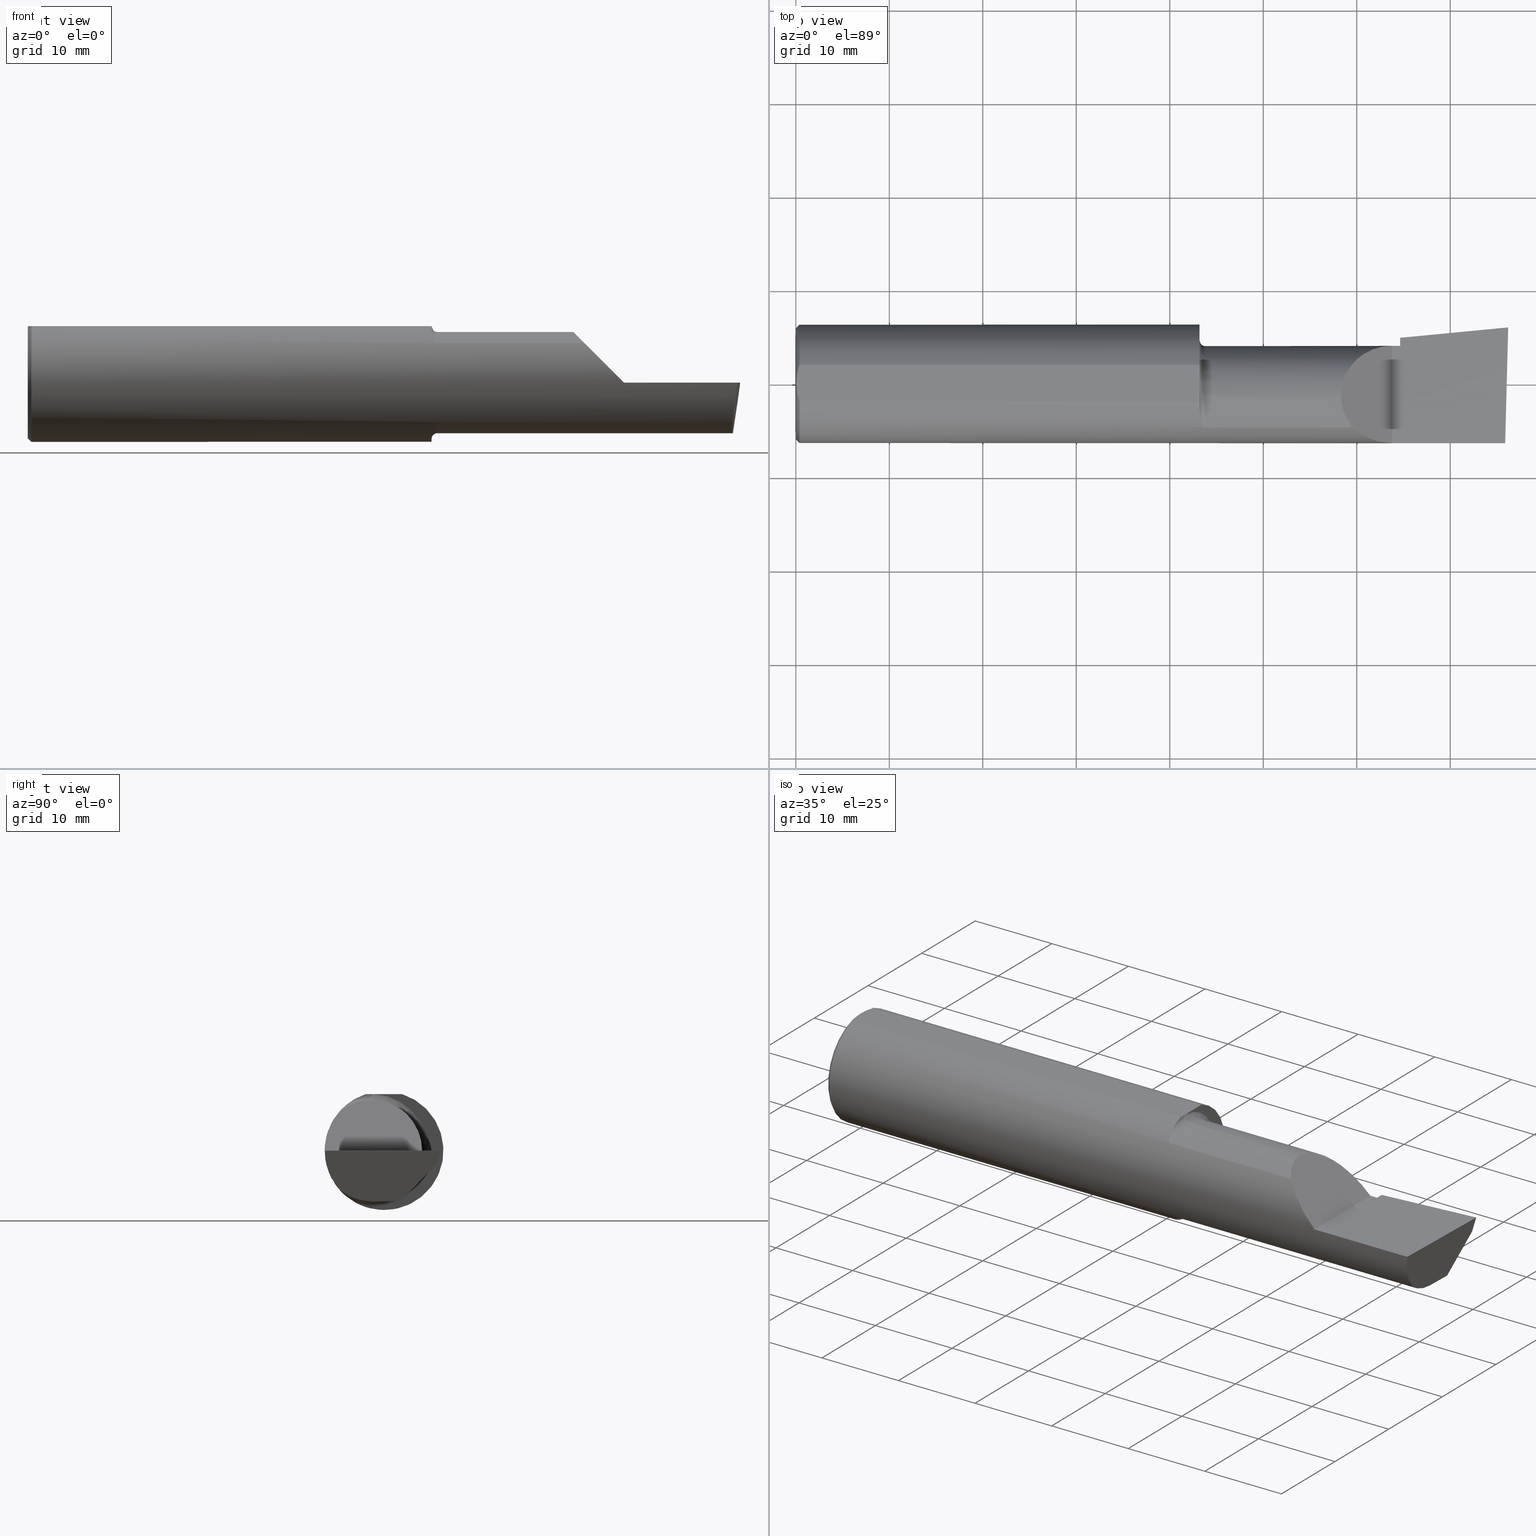
[diagram: canonical four-view strip — front | top / right | iso, engineering-drawing reading convention]
A machine part, canonical four-view strip (front | top / right | iso — engineering-drawing reading convention). The complete STEP part file that produces these views, byte-faithful:
ISO-10303-21;
HEADER;
FILE_DESCRIPTION (( 'STEP AP214' ),
    '1' );
FILE_NAME ('B4901250.STEP',
    '2020-05-06T18:27:08',
    ( '' ),
    ( '' ),
    'SwSTEP 2.0',
    'SolidWorks 2018',
    '' );
FILE_SCHEMA (( 'AUTOMOTIVE_DESIGN' ));
ENDSEC;

DATA;
#1 = DIRECTION ( 'NONE',  ( 0.0000000000000000000, 0.0000000000000000000, 1.000000000000000000 ) ) ;
#2 = FACE_OUTER_BOUND ( 'NONE', #151, .T. ) ;
#3 = VECTOR ( 'NONE', #484, 39.37007874015748143 ) ;
#4 = CARTESIAN_POINT ( 'NONE',  ( 1.725000000000000089, -0.05299999999999996381, -0.2381499999999998896 ) ) ;
#5 = ORIENTED_EDGE ( 'NONE', *, *, #648, .F. ) ;
#6 = ORIENTED_EDGE ( 'NONE', *, *, #312, .T. ) ;
#7 = DIRECTION ( 'NONE',  ( 0.0000000000000000000, 0.0000000000000000000, -1.000000000000000000 ) ) ;
#8 = CARTESIAN_POINT ( 'NONE',  ( 1.700000000000000178, -0.05299999999999998462, 0.0000000000000000000 ) ) ;
#9 = ORIENTED_EDGE ( 'NONE', *, *, #692, .F. ) ;
#10 = CARTESIAN_POINT ( 'NONE',  ( 2.545000000000000373, 0.1328281892403428421, -0.1044069278527785527 ) ) ;
#11 = VECTOR ( 'NONE', #103, 39.37007874015748143 ) ;
#12 = EDGE_CURVE ( 'NONE', #184, #189, #138, .T. ) ;
#13 = CARTESIAN_POINT ( 'NONE',  ( 0.01120982745448973784, -0.06412238594540853320, 0.2378500000000000059 ) ) ;
#14 = AXIS2_PLACEMENT_3D ( 'NONE', #758, #587, #159 ) ;
#15 = DIRECTION ( 'NONE',  ( 0.0000000000000000000, 0.0000000000000000000, -1.000000000000000000 ) ) ;
#16 = CIRCLE ( 'NONE', #126, 0.2498499999999999888 ) ;
#17 =( BOUNDED_CURVE ( )  B_SPLINE_CURVE ( 3, ( #730, #550, #720, #742 ),
 .UNSPECIFIED., .F., .T. ) 
 B_SPLINE_CURVE_WITH_KNOTS ( ( 4, 4 ),
 ( 4.712388980384689674, 5.438654041019562513 ),
 .UNSPECIFIED. ) 
 CURVE ( )  GEOMETRIC_REPRESENTATION_ITEM ( )  RATIONAL_B_SPLINE_CURVE ( ( 1.000000000000000000, 0.9565258159411007544, 0.9565258159411007544, 1.000000000000000000 ) ) 
 REPRESENTATION_ITEM ( '' )  );
#18 = ORIENTED_EDGE ( 'NONE', *, *, #714, .F. ) ;
#19 = CARTESIAN_POINT ( 'NONE',  ( 0.0000000000000000000, 0.0000000000000000000, -0.2348499999999996424 ) ) ;
#20 = ORIENTED_EDGE ( 'NONE', *, *, #517, .F. ) ;
#21 = DIRECTION ( 'NONE',  ( -1.000000000000000000, 0.0000000000000000000, -0.0000000000000000000 ) ) ;
#22 = DIRECTION ( 'NONE',  ( 1.000000000000000000, 0.0000000000000000000, 0.0000000000000000000 ) ) ;
#23 = CARTESIAN_POINT ( 'NONE',  ( 2.966195468375010247, -0.05299999999999998462, -0.2131499999999999229 ) ) ;
#24 =( GEOMETRIC_REPRESENTATION_CONTEXT ( 3 ) GLOBAL_UNCERTAINTY_ASSIGNED_CONTEXT ( ( #301 ) ) GLOBAL_UNIT_ASSIGNED_CONTEXT ( ( #743, #527, #203 ) ) REPRESENTATION_CONTEXT ( 'NONE', 'WORKASPACE' ) );
#25 = CIRCLE ( 'NONE', #398, 0.2131499999999999784 ) ;
#26 = EDGE_CURVE ( 'NONE', #674, #337, #609, .T. ) ;
#27 = ORIENTED_EDGE ( 'NONE', *, *, #88, .T. ) ;
#28 = AXIS2_PLACEMENT_3D ( 'NONE', #250, #667, #314 ) ;
#29 = EDGE_CURVE ( 'NONE', #661, #237, #760, .T. ) ;
#30 = CIRCLE ( 'NONE', #602, 0.2381499999999998618 ) ;
#31 = CARTESIAN_POINT ( 'NONE',  ( 0.0000000000000000000, 0.0000000000000000000, 0.0000000000000000000 ) ) ;
#32 = CARTESIAN_POINT ( 'NONE',  ( 0.01499999999999999771, 0.0000000000000000000, 0.0000000000000000000 ) ) ;
#33 = FACE_OUTER_BOUND ( 'NONE', #82, .T. ) ;
#34 = ORIENTED_EDGE ( 'NONE', *, *, #282, .F. ) ;
#35 = DIRECTION ( 'NONE',  ( 0.0000000000000000000, 0.0000000000000000000, 1.000000000000000000 ) ) ;
#36 = VERTEX_POINT ( 'NONE', #140 ) ;
#37 = DIRECTION ( 'NONE',  ( 0.0000000000000000000, 0.0000000000000000000, 1.000000000000000000 ) ) ;
#38 =( BOUNDED_CURVE ( )  B_SPLINE_CURVE ( 3, ( #508, #79, #452, #683 ),
 .UNSPECIFIED., .F., .T. ) 
 B_SPLINE_CURVE_WITH_KNOTS ( ( 4, 4 ),
 ( 5.604538515477337057, 6.283185307179586232 ),
 .UNSPECIFIED. ) 
 CURVE ( )  GEOMETRIC_REPRESENTATION_ITEM ( )  RATIONAL_B_SPLINE_CURVE ( ( 1.000000000000000000, 0.9619867256453012994, 0.9619867256453012994, 1.000000000000000000 ) ) 
 REPRESENTATION_ITEM ( '' )  );
#39 = CARTESIAN_POINT ( 'NONE',  ( 2.135000000000000231, -0.1868028301886796583, 0.1659208399614084672 ) ) ;
#40 = ADVANCED_FACE ( 'NONE', ( #122 ), #451, .F. ) ;
#41 = LINE ( 'NONE', #325, #685 ) ;
#42 = DIRECTION ( 'NONE',  ( -0.9922060308645452853, 0.02598182930469785171, 0.1218693434051673213 ) ) ;
#43 = ORIENTED_EDGE ( 'NONE', *, *, #397, .T. ) ;
#44 = CARTESIAN_POINT ( 'NONE',  ( 1.725000000000000089, -0.05299999999999998462, 0.0000000000000000000 ) ) ;
#45 = AXIS2_PLACEMENT_3D ( 'NONE', #4, #115, #236 ) ;
#46 = ORIENTED_EDGE ( 'NONE', *, *, #129, .F. ) ;
#47 = CARTESIAN_POINT ( 'NONE',  ( 2.992127980275568255, 0.2189633278254531357, -0.05999999999999997696 ) ) ;
#48 = DIMENSIONAL_EXPONENTS ( 1.000000000000000000, 0.0000000000000000000, 0.0000000000000000000, 0.0000000000000000000, 0.0000000000000000000, 0.0000000000000000000, 0.0000000000000000000 ) ;
#49 = CYLINDRICAL_SURFACE ( 'NONE', #58, 0.2131499999999999229 ) ;
#50 = EDGE_CURVE ( 'NONE', #625, #61, #278, .T. ) ;
#51 = ORIENTED_EDGE ( 'NONE', *, *, #636, .F. ) ;
#52 = ORIENTED_EDGE ( 'NONE', *, *, #599, .F. ) ;
#53 = CARTESIAN_POINT ( 'NONE',  ( 1.720144309637440694, -0.1849788583324332991, 0.1679547276881066253 ) ) ;
#54 = EDGE_LOOP ( 'NONE', ( #619, #560, #160, #297, #430, #370, #651, #326, #414, #389 ) ) ;
#55 = CARTESIAN_POINT ( 'NONE',  ( 1.700332084145229850, -0.1014027185340450193, 0.2286231260779311159 ) ) ;
#56 = CIRCLE ( 'NONE', #62, 0.2348499999999996424 ) ;
#57 = ORIENTED_EDGE ( 'NONE', *, *, #670, .T. ) ;
#58 = AXIS2_PLACEMENT_3D ( 'NONE', #440, #329, #559 ) ;
#59 = CARTESIAN_POINT ( 'NONE',  ( 0.0000000000000000000, 0.0000000000000000000, 0.0000000000000000000 ) ) ;
#60 = EDGE_CURVE ( 'NONE', #201, #189, #520, .T. ) ;
#61 = VERTEX_POINT ( 'NONE', #331 ) ;
#62 = AXIS2_PLACEMENT_3D ( 'NONE', #561, #259, #65 ) ;
#63 = LINE ( 'NONE', #110, #693 ) ;
#64 = EDGE_CURVE ( 'NONE', #446, #642, #307, .T. ) ;
#65 = DIRECTION ( 'NONE',  ( 0.0000000000000000000, 0.0000000000000000000, 1.000000000000000000 ) ) ;
#66 = ORIENTED_EDGE ( 'NONE', *, *, #172, .T. ) ;
#67 = ORIENTED_EDGE ( 'NONE', *, *, #537, .F. ) ;
#68 = CARTESIAN_POINT ( 'NONE',  ( 2.545000000000000373, 0.1328281892403428421, -0.1044069278527785527 ) ) ;
#69 = ORIENTED_EDGE ( 'NONE', *, *, #190, .T. ) ;
#70 = DIRECTION ( 'NONE',  ( 0.0000000000000000000, 0.0000000000000000000, 1.000000000000000000 ) ) ;
#71 = CIRCLE ( 'NONE', #449, 0.2498499999999999888 ) ;
#72 = EDGE_LOOP ( 'NONE', ( #380, #543, #426, #234 ) ) ;
#73 = DIRECTION ( 'NONE',  ( 1.000000000000000000, 0.0000000000000000000, 0.0000000000000000000 ) ) ;
#74 = DIRECTION ( 'NONE',  ( 0.0000000000000000000, 0.0000000000000000000, 1.000000000000000000 ) ) ;
#75 = FACE_OUTER_BOUND ( 'NONE', #735, .T. ) ;
#76 = ORIENTED_EDGE ( 'NONE', *, *, #416, .F. ) ;
#77 = CARTESIAN_POINT ( 'NONE',  ( 2.968492717492763777, -0.1868028301886796583, -0.1659208399614084672 ) ) ;
#78 = FILL_AREA_STYLE ('',( #574 ) ) ;
#79 = CARTESIAN_POINT ( 'NONE',  ( 2.313215146136122780, -0.1485302233682073147, 0.1967848538638751199 ) ) ;
#80 = ORIENTED_EDGE ( 'NONE', *, *, #64, .F. ) ;
#81 = DIRECTION ( 'NONE',  ( 0.09165774897393343112, -0.9519021185660614393, 0.2923717047227302746 ) ) ;
#82 = EDGE_LOOP ( 'NONE', ( #412, #404, #403, #289 ) ) ;
#83 = AXIS2_PLACEMENT_3D ( 'NONE', #427, #494, #498 ) ;
#84 = PLANE ( 'NONE',  #652 ) ;
#85 = DIRECTION ( 'NONE',  ( 0.0000000000000000000, 1.000000000000000000, -1.138839417068644240E-16 ) ) ;
#86 = DIRECTION ( 'NONE',  ( -1.000000000000000000, -0.0000000000000000000, -0.0000000000000000000 ) ) ;
#87 = PRESENTATION_STYLE_ASSIGNMENT (( #439 ) ) ;
#88 = EDGE_CURVE ( 'NONE', #175, #570, #729, .T. ) ;
#89 = CARTESIAN_POINT ( 'NONE',  ( 0.0000000000000000000, 2.967931517733664261E-17, 0.2348499999999996424 ) ) ;
#90 = ORIENTED_EDGE ( 'NONE', *, *, #275, .T. ) ;
#91 = ORIENTED_EDGE ( 'NONE', *, *, #748, .T. ) ;
#92 = AXIS2_PLACEMENT_3D ( 'NONE', #31, #399, #749 ) ;
#93 = DIRECTION ( 'NONE',  ( -1.000000000000000000, -0.0000000000000000000, -0.0000000000000000000 ) ) ;
#94 = CIRCLE ( 'NONE', #290, 0.2131499999999998396 ) ;
#95 = CARTESIAN_POINT ( 'NONE',  ( 2.344079160038591070, -0.1868028301886809905, 0.1659208399614071905 ) ) ;
#96 = EDGE_LOOP ( 'NONE', ( #417, #471, #747, #595 ) ) ;
#97 = DIRECTION ( 'NONE',  ( 1.000000000000000000, 0.0000000000000000000, 0.0000000000000000000 ) ) ;
#98 = MANIFOLD_SOLID_BREP ( '5267FA8E-0C5C-45e6-87A0-509FF28F47E1-GAAFaceID11', #529 ) ;
#99 = CARTESIAN_POINT ( 'NONE',  ( 1.700000000000000178, -0.05299999999999998462, 0.0000000000000000000 ) ) ;
#100 = VECTOR ( 'NONE', #150, 39.37007874015748854 ) ;
#101 = ADVANCED_FACE ( 'NONE', ( #33 ), #364, .F. ) ;
#102 = ORIENTED_EDGE ( 'NONE', *, *, #613, .T. ) ;
#103 = DIRECTION ( 'NONE',  ( 1.000000000000000000, 0.0000000000000000000, 0.0000000000000000000 ) ) ;
#104 = DIRECTION ( 'NONE',  ( -1.000000000000000000, -0.0000000000000000000, -0.0000000000000000000 ) ) ;
#105 = STYLED_ITEM ( 'NONE', ( #300 ), #586 ) ;
#106 = ADVANCED_FACE ( 'NONE', ( #657 ), #641, .T. ) ;
#107 = EDGE_LOOP ( 'NONE', ( #27, #488, #34, #705 ) ) ;
#108 = EDGE_CURVE ( 'NONE', #189, #754, #16, .T. ) ;
#109 = CARTESIAN_POINT ( 'NONE',  ( 2.987221270274242446, -0.2498499999999999888, -6.495017623931165518E-17 ) ) ;
#110 = CARTESIAN_POINT ( 'NONE',  ( 2.987226101480009444, -0.2496655036952227513, -6.495142247650543265E-17 ) ) ;
#111 = EDGE_CURVE ( 'NONE', #237, #549, #17, .T. ) ;
#112 = ORIENTED_EDGE ( 'NONE', *, *, #108, .F. ) ;
#113 = FACE_OUTER_BOUND ( 'NONE', #248, .T. ) ;
#114 = LENGTH_MEASURE_WITH_UNIT ( LENGTH_MEASURE( 0.02539999999999999897 ), #332 );
#115 = DIRECTION ( 'NONE',  ( -0.0000000000000000000, 1.000000000000000000, 1.224646799147353207E-16 ) ) ;
#116 = VECTOR ( 'NONE', #200, 39.37007874015748143 ) ;
#117 = CARTESIAN_POINT ( 'NONE',  ( 1.717018584423772198, -0.1817363555988616708, 0.1714722504633802991 ) ) ;
#118 = ORIENTED_EDGE ( 'NONE', *, *, #108, .T. ) ;
#119 = DIRECTION ( 'NONE',  ( -1.000000000000000000, -0.0000000000000000000, -0.0000000000000000000 ) ) ;
#120 =( BOUNDED_CURVE ( )  B_SPLINE_CURVE ( 3, ( #509, #202, #453, #23 ),
 .UNSPECIFIED., .F., .F. ) 
 B_SPLINE_CURVE_WITH_KNOTS ( ( 4, 4 ),
 ( 5.814587959757513858, 6.493234751459754150 ),
 .UNSPECIFIED. ) 
 CURVE ( )  GEOMETRIC_REPRESENTATION_ITEM ( )  RATIONAL_B_SPLINE_CURVE ( ( 1.000000000000000000, 0.9619867256453021875, 0.9619867256453021875, 1.000000000000000000 ) ) 
 REPRESENTATION_ITEM ( '' )  );
#121 = DIRECTION ( 'NONE',  ( 1.000000000000000000, 0.0000000000000000000, 0.0000000000000000000 ) ) ;
#122 = FACE_OUTER_BOUND ( 'NONE', #96, .T. ) ;
#123 = EDGE_LOOP ( 'NONE', ( #118, #90, #528, #485 ) ) ;
#124 = DIRECTION ( 'NONE',  ( -0.09584575252021049208, 0.9953961983671800740, 0.0000000000000000000 ) ) ;
#125 = CARTESIAN_POINT ( 'NONE',  ( 2.541916792879878706, 0.05627666367902771360, -0.1830073912696824345 ) ) ;
#126 = AXIS2_PLACEMENT_3D ( 'NONE', #567, #249, #677 ) ;
#127 = ORIENTED_EDGE ( 'NONE', *, *, #359, .T. ) ;
#128 = DIRECTION ( 'NONE',  ( 0.0000000000000000000, 0.0000000000000000000, 1.000000000000000000 ) ) ;
#129 = EDGE_CURVE ( 'NONE', #184, #36, #174, .T. ) ;
#130 = CARTESIAN_POINT ( 'NONE',  ( 2.528944985009564217, 0.1743638780700109969, -0.05999999999999998390 ) ) ;
#131 = LINE ( 'NONE', #406, #751 ) ;
#132 = AXIS2_PLACEMENT_3D ( 'NONE', #753, #156, #213 ) ;
#133 = CARTESIAN_POINT ( 'NONE',  ( 2.540349815208490014, 0.05592018782259779164, -0.1832193089843150713 ) ) ;
#134 = CIRCLE ( 'NONE', #462, 0.2498499999999999888 ) ;
#135 = ORIENTED_EDGE ( 'NONE', *, *, #764, .T. ) ;
#136 = CARTESIAN_POINT ( 'NONE',  ( 1.725000000000000089, -0.05299999999999998462, 0.0000000000000000000 ) ) ;
#137 = CARTESIAN_POINT ( 'NONE',  ( 1.725000000000000089, -0.1868028301886795473, -0.1659208399614084672 ) ) ;
#138 = CIRCLE ( 'NONE', #510, 0.2381499999999998618 ) ;
#139 = CARTESIAN_POINT ( 'NONE',  ( 1.725000000000000089, -0.05299999999999998462, 0.0000000000000000000 ) ) ;
#140 = CARTESIAN_POINT ( 'NONE',  ( 1.725000000000000089, -0.05299999999999996381, -0.2131499999999998396 ) ) ;
#141 =( NAMED_UNIT ( * ) PLANE_ANGLE_UNIT ( ) SI_UNIT ( $, .RADIAN. ) );
#142 = CARTESIAN_POINT ( 'NONE',  ( 1.725000000000000089, -0.05299999999999998462, 0.0000000000000000000 ) ) ;
#143 = DIRECTION ( 'NONE',  ( 0.06658005426110608083, -0.6914603011188221737, -0.7193398003386548556 ) ) ;
#144 = CARTESIAN_POINT ( 'NONE',  ( 1.705537042546466875, -0.1495003888704987127, -0.2004994225712674327 ) ) ;
#145 = PRESENTATION_LAYER_ASSIGNMENT (  '', '', ( #105 ) ) ;
#146 = SURFACE_SIDE_STYLE ('',( #467 ) ) ;
#147 = CARTESIAN_POINT ( 'NONE',  ( 2.528944985009564217, 0.1743638780700109969, -0.05999999999999998390 ) ) ;
#148 = EDGE_CURVE ( 'NONE', #344, #184, #322, .T. ) ;
#149 = CARTESIAN_POINT ( 'NONE',  ( 0.004092330037930667214, 0.02606142970188504368, 0.2378500000000000059 ) ) ;
#150 = DIRECTION ( 'NONE',  ( 0.9953961983671800740, 0.09584575252021031166, -0.0000000000000000000 ) ) ;
#151 = EDGE_LOOP ( 'NONE', ( #18, #768, #383, #228, #43 ) ) ;
#152 = CARTESIAN_POINT ( 'NONE',  ( 2.385139620819824113, 0.1601499999999999313, 0.1248603791801747576 ) ) ;
#153 = EDGE_CURVE ( 'NONE', #570, #717, #500, .T. ) ;
#154 = LINE ( 'NONE', #525, #638 ) ;
#155 = EDGE_LOOP ( 'NONE', ( #542, #91, #759, #731, #177, #524 ) ) ;
#156 = DIRECTION ( 'NONE',  ( -2.618446795914836237E-16, 0.0000000000000000000, -1.000000000000000000 ) ) ;
#157 = VECTOR ( 'NONE', #628, 39.37007874015748143 ) ;
#158 =( BOUNDED_CURVE ( )  B_SPLINE_CURVE ( 3, ( #712, #766, #598, #233 ),
 .UNSPECIFIED., .F., .F. ) 
 B_SPLINE_CURVE_WITH_KNOTS ( ( 4, 4 ),
 ( 0.4968328636548186572, 1.034445644973940093 ),
 .UNSPECIFIED. ) 
 CURVE ( )  GEOMETRIC_REPRESENTATION_ITEM ( )  RATIONAL_B_SPLINE_CURVE ( ( 1.000000000000000000, 0.9760590552538845888, 0.9760590552538845888, 1.000000000000000000 ) ) 
 REPRESENTATION_ITEM ( '' )  );
#159 = DIRECTION ( 'NONE',  ( -0.0000000000000000000, 0.0000000000000000000, 1.000000000000000000 ) ) ;
#160 = ORIENTED_EDGE ( 'NONE', *, *, #670, .F. ) ;
#161 =( NAMED_UNIT ( * ) SI_UNIT ( $, .STERADIAN. ) SOLID_ANGLE_UNIT ( ) );
#162 = DIRECTION ( 'NONE',  ( -1.000000000000000000, 5.691349986800549142E-18, -0.0000000000000000000 ) ) ;
#163 = ADVANCED_FACE ( 'NONE', ( #343 ), #183, .T. ) ;
#164 = ORIENTED_EDGE ( 'NONE', *, *, #654, .T. ) ;
#165 = ADVANCED_FACE ( 'NONE', ( #624 ), #756, .T. ) ;
#166 = CARTESIAN_POINT ( 'NONE',  ( 2.545000000000000373, -0.05299999999999998462, -0.2131499999999999229 ) ) ;
#167 = LINE ( 'NONE', #600, #217 ) ;
#168 = DIRECTION ( 'NONE',  ( 0.0000000000000000000, 0.2936076258024059582, 0.9559260233253795702 ) ) ;
#169 = ORIENTED_EDGE ( 'NONE', *, *, #148, .F. ) ;
#170 = AXIS2_PLACEMENT_3D ( 'NONE', #504, #507, #669 ) ;
#171 = CIRCLE ( 'NONE', #672, 0.02499999999999993894 ) ;
#172 = EDGE_CURVE ( 'NONE', #61, #247, #134, .T. ) ;
#173 = DIRECTION ( 'NONE',  ( 0.0000000000000000000, 0.0000000000000000000, 1.000000000000000000 ) ) ;
#174 = CIRCLE ( 'NONE', #45, 0.02499999999999993894 ) ;
#175 = VERTEX_POINT ( 'NONE', #663 ) ;
#176 = CARTESIAN_POINT ( 'NONE',  ( 1.705553274544309827, -0.1495649063853951022, 0.2004446339470382088 ) ) ;
#177 = ORIENTED_EDGE ( 'NONE', *, *, #185, .F. ) ;
#178 = CARTESIAN_POINT ( 'NONE',  ( 0.003000000000000063380, 0.01299872814765626154, 0.2378499999999999226 ) ) ;
#179 = VERTEX_POINT ( 'NONE', #428 ) ;
#180 = CARTESIAN_POINT ( 'NONE',  ( 1.700000000000000178, -0.05299999999999996381, -0.2381499999999998896 ) ) ;
#181 = LINE ( 'NONE', #166, #355 ) ;
#182 = MECHANICAL_DESIGN_GEOMETRIC_PRESENTATION_REPRESENTATION (  '', ( #105 ), #226 ) ;
#183 = PLANE ( 'NONE',  #419 ) ;
#184 = VERTEX_POINT ( 'NONE', #180 ) ;
#185 = EDGE_CURVE ( 'NONE', #294, #674, #545, .T. ) ;
#186 = CARTESIAN_POINT ( 'NONE',  ( 2.536975816846327447, 0.1338694103809225100, -0.1025372660271277742 ) ) ;
#187 = CARTESIAN_POINT ( 'NONE',  ( 0.003000000000000035624, 4.000211044293764417E-17, 0.2378500000000000059 ) ) ;
#188 = FACE_OUTER_BOUND ( 'NONE', #313, .T. ) ;
#189 = VERTEX_POINT ( 'NONE', #489 ) ;
#190 = EDGE_CURVE ( 'NONE', #563, #512, #340, .T. ) ;
#191 = DIRECTION ( 'NONE',  ( 1.000000000000000000, 0.0000000000000000000, 0.0000000000000000000 ) ) ;
#192 = CARTESIAN_POINT ( 'NONE',  ( 0.008199648822849016708, 0.05156445313451110679, 0.2378500000000000059 ) ) ;
#193 = ORIENTED_EDGE ( 'NONE', *, *, #212, .T. ) ;
#194 = ORIENTED_EDGE ( 'NONE', *, *, #556, .F. ) ;
#195 = CARTESIAN_POINT ( 'NONE',  ( 0.008160184410935168720, -0.05138200716576601240, 0.2378500000000000614 ) ) ;
#196 = CARTESIAN_POINT ( 'NONE',  ( 0.01120763235350242214, 0.06411521680875356677, 0.2378500000000000336 ) ) ;
#197 =( LENGTH_UNIT ( ) NAMED_UNIT ( * ) SI_UNIT ( $, .METRE. ) );
#198 = CARTESIAN_POINT ( 'NONE',  ( 2.545000000000000373, 0.2148312740513257935, -0.01988118725737613932 ) ) ;
#199 = SHAPE_DEFINITION_REPRESENTATION ( #219, #586 ) ;
#200 = DIRECTION ( 'NONE',  ( -1.000000000000000000, -0.0000000000000000000, -0.0000000000000000000 ) ) ;
#201 = VERTEX_POINT ( 'NONE', #137 ) ;
#202 = CARTESIAN_POINT ( 'NONE',  ( 2.965703997523711166, -0.1485302233682061768, -0.1967848538638755362 ) ) ;
#203 =( NAMED_UNIT ( * ) SI_UNIT ( $, .STERADIAN. ) SOLID_ANGLE_UNIT ( ) );
#204 = DIRECTION ( 'NONE',  ( 0.0000000000000000000, 0.0000000000000000000, 1.000000000000000000 ) ) ;
#205 = CARTESIAN_POINT ( 'NONE',  ( 1.700000000000000178, -0.06494989539702883397, 0.2378500000000000059 ) ) ;
#206 = CARTESIAN_POINT ( 'NONE',  ( 0.01499999999999999771, 0.07650098038587500870, 0.2378499999999999226 ) ) ;
#207 = B_SPLINE_CURVE_WITH_KNOTS ( 'NONE', 3,
 ( #210, #746, #633, #205 ),
 .UNSPECIFIED., .F., .F.,
 ( 4, 4 ),
 ( 0.4999999999997247202, 1.000000000000000000 ),
 .UNSPECIFIED. ) ;
#208 = ORIENTED_EDGE ( 'NONE', *, *, #648, .T. ) ;
#209 = CARTESIAN_POINT ( 'NONE',  ( 1.700000000000000178, 0.1851499999999998702, 0.0000000000000000000 ) ) ;
#210 = CARTESIAN_POINT ( 'NONE',  ( 1.700000900032402562, -0.05299999999999998462, 0.2378500000000221548 ) ) ;
#211 = LINE ( 'NONE', #257, #521 ) ;
#212 = EDGE_CURVE ( 'NONE', #674, #175, #604, .T. ) ;
#213 = DIRECTION ( 'NONE',  ( -1.000000000000000000, 0.0000000000000000000, 2.618446795914836237E-16 ) ) ;
#214 = CARTESIAN_POINT ( 'NONE',  ( 1.700000000000000178, -0.08036415094339686982, 0.2365726648265747967 ) ) ;
#215 = ORIENTED_EDGE ( 'NONE', *, *, #316, .F. ) ;
#216 = ORIENTED_EDGE ( 'NONE', *, *, #153, .F. ) ;
#217 = VECTOR ( 'NONE', #656, 39.37007874015748143 ) ;
#218 = DIRECTION ( 'NONE',  ( 0.0000000000000000000, 0.0000000000000000000, -1.000000000000000000 ) ) ;
#219 = PRODUCT_DEFINITION_SHAPE ( 'NONE', 'NONE',  #393 ) ;
#220 = ORIENTED_EDGE ( 'NONE', *, *, #309, .F. ) ;
#221 = EDGE_LOOP ( 'NONE', ( #699, #67, #739, #715, #515 ) ) ;
#222 = ADVANCED_FACE ( 'NONE', ( #469 ), #303, .F. ) ;
#223 = DIRECTION ( 'NONE',  ( 0.0000000000000000000, -1.000000000000000000, 1.707404996040164512E-16 ) ) ;
#224 = ADVANCED_FACE ( 'NONE', ( #606 ), #288, .T. ) ;
#225 = ORIENTED_EDGE ( 'NONE', *, *, #401, .F. ) ;
#226 =( GEOMETRIC_REPRESENTATION_CONTEXT ( 3 ) GLOBAL_UNCERTAINTY_ASSIGNED_CONTEXT ( ( #269 ) ) GLOBAL_UNIT_ASSIGNED_CONTEXT ( ( #450, #141, #161 ) ) REPRESENTATION_CONTEXT ( 'NONE', 'WORKASPACE' ) );
#227 = EDGE_CURVE ( 'NONE', #36, #201, #445, .T. ) ;
#228 = ORIENTED_EDGE ( 'NONE', *, *, #688, .T. ) ;
#229 = LINE ( 'NONE', #438, #372 ) ;
#230 = DIRECTION ( 'NONE',  ( -0.0000000000000000000, 0.0000000000000000000, 1.000000000000000000 ) ) ;
#231 = EDGE_CURVE ( 'NONE', #607, #36, #304, .T. ) ;
#232 = DIMENSIONAL_EXPONENTS ( 1.000000000000000000, 0.0000000000000000000, 0.0000000000000000000, 0.0000000000000000000, 0.0000000000000000000, 0.0000000000000000000, 0.0000000000000000000 ) ;
#233 = CARTESIAN_POINT ( 'NONE',  ( 2.540349815208490014, 0.05592018782259779164, -0.1832193089843150713 ) ) ;
#234 = ORIENTED_EDGE ( 'NONE', *, *, #482, .T. ) ;
#235 = ORIENTED_EDGE ( 'NONE', *, *, #354, .T. ) ;
#236 = DIRECTION ( 'NONE',  ( 0.0000000000000000000, 0.0000000000000000000, 1.000000000000000000 ) ) ;
#237 = VERTEX_POINT ( 'NONE', #456 ) ;
#238 = CARTESIAN_POINT ( 'NONE',  ( 0.01499999999999999771, 0.0000000000000000000, -0.2498499999999999888 ) ) ;
#239 = EDGE_LOOP ( 'NONE', ( #305, #283, #273 ) ) ;
#240 = CARTESIAN_POINT ( 'NONE',  ( 1.722232603162240139, -0.1862758070845875191, -0.1665151405181425348 ) ) ;
#241 = AXIS2_PLACEMENT_3D ( 'NONE', #276, #81, #457 ) ;
#242 = CARTESIAN_POINT ( 'NONE',  ( 1.699999999999999734, -0.09104204635388213340, 0.2329453649474654275 ) ) ;
#243 = FACE_OUTER_BOUND ( 'NONE', #716, .T. ) ;
#244 = CARTESIAN_POINT ( 'NONE',  ( 2.966218632342874972, -0.05211540375603048586, -0.2131499999999999229 ) ) ;
#245 = ORIENTED_EDGE ( 'NONE', *, *, #492, .F. ) ;
#246 = DIRECTION ( 'NONE',  ( -1.000000000000000000, -0.0000000000000000000, -0.0000000000000000000 ) ) ;
#247 = VERTEX_POINT ( 'NONE', #395 ) ;
#248 = EDGE_LOOP ( 'NONE', ( #254, #382 ) ) ;
#249 = DIRECTION ( 'NONE',  ( 1.000000000000000000, 0.0000000000000000000, 0.0000000000000000000 ) ) ;
#250 = CARTESIAN_POINT ( 'NONE',  ( 1.725000000000000089, -0.05299999999999998462, 0.0000000000000000000 ) ) ;
#251 = CARTESIAN_POINT ( 'NONE',  ( -0.02370835988220531057, -0.05299999999999998462, 7.234457468298397131E-16 ) ) ;
#252 = SURFACE_STYLE_FILL_AREA ( #431 ) ;
#253 = DIRECTION ( 'NONE',  ( 0.0000000000000000000, -0.6963153109074925462, -0.7177360153954948085 ) ) ;
#254 = ORIENTED_EDGE ( 'NONE', *, *, #368, .T. ) ;
#255 = CARTESIAN_POINT ( 'NONE',  ( 1.725000000000000089, -0.1868028301886795473, -0.1659208399614084672 ) ) ;
#256 = EDGE_CURVE ( 'NONE', #549, #415, #38, .T. ) ;
#257 = CARTESIAN_POINT ( 'NONE',  ( 2.988156289907357710, 0.07000163221414998360, -0.2131499999999999506 ) ) ;
#258 = ORIENTED_EDGE ( 'NONE', *, *, #172, .F. ) ;
#259 = DIRECTION ( 'NONE',  ( -1.000000000000000000, -0.0000000000000000000, -0.0000000000000000000 ) ) ;
#260 = CARTESIAN_POINT ( 'NONE',  ( 1.720138573936400572, -0.1849738682364329700, -0.1679602226613252647 ) ) ;
#261 = FACE_OUTER_BOUND ( 'NONE', #107, .T. ) ;
#262 = CARTESIAN_POINT ( 'NONE',  ( 1.700000900032402562, -0.05299999999999998462, 0.2378500000000221548 ) ) ;
#263 = CARTESIAN_POINT ( 'NONE',  ( 0.003000000000000061211, -0.01298133447204027208, 0.2378500000000000614 ) ) ;
#264 = CARTESIAN_POINT ( 'NONE',  ( 0.01499999999999999771, 0.0000000000000000000, 0.0000000000000000000 ) ) ;
#265 = FACE_OUTER_BOUND ( 'NONE', #701, .T. ) ;
#266 = CARTESIAN_POINT ( 'NONE',  ( 1.719285582744839669, -0.1841881072713809631, -0.1688230283719350799 ) ) ;
#267 = ORIENTED_EDGE ( 'NONE', *, *, #50, .T. ) ;
#268 = CARTESIAN_POINT ( 'NONE',  ( 2.545000000000000373, -0.2500000000000000555, 5.084312937251844195E-17 ) ) ;
#269 = UNCERTAINTY_MEASURE_WITH_UNIT (LENGTH_MEASURE( 1.000000000000000082E-05 ), #450, 'distance_accuracy_value', 'NONE');
#270 = CARTESIAN_POINT ( 'NONE',  ( 1.717016733372314974, -0.1817333077058770063, -0.1714754572696064183 ) ) ;
#271 = APPLICATION_CONTEXT ( 'automotive_design' ) ;
#272 = CARTESIAN_POINT ( 'NONE',  ( 1.715875558094660080, -0.1799506819598040153, -0.1733486322212179631 ) ) ;
#273 = ORIENTED_EDGE ( 'NONE', *, *, #434, .F. ) ;
#274 = CARTESIAN_POINT ( 'NONE',  ( 0.0000000000000000000, -0.05299999999999996381, -0.2131499999999999229 ) ) ;
#275 = EDGE_CURVE ( 'NONE', #754, #344, #737, .T. ) ;
#276 = CARTESIAN_POINT ( 'NONE',  ( 2.527186805775588851, 0.1926232675528999905, -6.829619984160658046E-17 ) ) ;
#277 = CARTESIAN_POINT ( 'NONE',  ( 1.712797058507745440, -0.1743943839926587747, -0.1789958554125697376 ) ) ;
#278 = B_SPLINE_CURVE_WITH_KNOTS ( 'NONE', 3,
 ( #187, #178, #149, #192, #196, #206 ),
 .UNSPECIFIED., .F., .F.,
 ( 4, 2, 4 ),
 ( 0.004653101494310745746, 0.005634627094920352519, 0.006616152695529959292 ),
 .UNSPECIFIED. ) ;
#279 = DIRECTION ( 'NONE',  ( 0.0000000000000000000, 0.0000000000000000000, -1.000000000000000000 ) ) ;
#280 = DIRECTION ( 'NONE',  ( -1.000000000000000000, -0.0000000000000000000, -0.0000000000000000000 ) ) ;
#281 = CARTESIAN_POINT ( 'NONE',  ( 1.711285743882608124, -0.1704402150608116950, -0.1827701868778696948 ) ) ;
#282 = EDGE_CURVE ( 'NONE', #179, #717, #757, .T. ) ;
#283 = ORIENTED_EDGE ( 'NONE', *, *, #459, .F. ) ;
#284 = PLANE ( 'NONE',  #132 ) ;
#285 = CIRCLE ( 'NONE', #92, 0.2348499999999996424 ) ;
#286 = CARTESIAN_POINT ( 'NONE',  ( 2.545000000000000373, 0.05698775240724726632, -0.1825804393148457716 ) ) ;
#287 = CARTESIAN_POINT ( 'NONE',  ( 1.725000000000000089, -0.05299999999999998462, 0.2381499999999998896 ) ) ;
#288 = CYLINDRICAL_SURFACE ( 'NONE', #617, 0.2131499999999999229 ) ;
#289 = ORIENTED_EDGE ( 'NONE', *, *, #615, .F. ) ;
#290 = AXIS2_PLACEMENT_3D ( 'NONE', #139, #506, #74 ) ;
#291 = ORIENTED_EDGE ( 'NONE', *, *, #391, .T. ) ;
#292 = ADVANCED_FACE ( 'NONE', ( #721 ), #84, .T. ) ;
#293 = VECTOR ( 'NONE', #454, 39.37007874015748143 ) ;
#294 = VERTEX_POINT ( 'NONE', #579 ) ;
#295 = DIRECTION ( 'NONE',  ( 0.0000000000000000000, 0.6963153109074925462, 0.7177360153954948085 ) ) ;
#296 = AXIS2_PLACEMENT_3D ( 'NONE', #8, #311, #726 ) ;
#297 = ORIENTED_EDGE ( 'NONE', *, *, #728, .F. ) ;
#298 = PLANE ( 'NONE',  #686 ) ;
#299 = FACE_OUTER_BOUND ( 'NONE', #725, .T. ) ;
#300 = PRESENTATION_STYLE_ASSIGNMENT (( #390 ) ) ;
#301 = UNCERTAINTY_MEASURE_WITH_UNIT (LENGTH_MEASURE( 1.000000000000000082E-05 ), #743, 'distance_accuracy_value', 'NONE');
#302 = CARTESIAN_POINT ( 'NONE',  ( 1.725000000000000089, -0.1868028301886794917, 0.1659208399614085228 ) ) ;
#303 = TOROIDAL_SURFACE ( 'NONE', #541, 0.2381499999999998896, 0.02499999999999995628 ) ;
#304 = LINE ( 'NONE', #274, #116 ) ;
#305 = ORIENTED_EDGE ( 'NONE', *, *, #478, .F. ) ;
#306 = CARTESIAN_POINT ( 'NONE',  ( 1.702700302592143222, -0.1312404656039928563, 0.2128935242986063348 ) ) ;
#307 = LINE ( 'NONE', #244, #593 ) ;
#308 = CARTESIAN_POINT ( 'NONE',  ( 1.878049121262586821E-31, 0.1601499999999999035, 7.172378389328440442E-16 ) ) ;
#309 = EDGE_CURVE ( 'NONE', #421, #247, #568, .T. ) ;
#310 = CARTESIAN_POINT ( 'NONE',  ( 1.699999999999989964, -0.1016924291521891927, -0.2293274111511738877 ) ) ;
#311 = DIRECTION ( 'NONE',  ( -1.000000000000000000, -0.0000000000000000000, -0.0000000000000000000 ) ) ;
#312 = EDGE_CURVE ( 'NONE', #344, #361, #750, .T. ) ;
#313 = EDGE_LOOP ( 'NONE', ( #164, #80, #225, #216, #668, #9 ) ) ;
#314 = DIRECTION ( 'NONE',  ( 0.0000000000000000000, 0.0000000000000000000, 1.000000000000000000 ) ) ;
#315 = DIRECTION ( 'NONE',  ( 0.0000000000000000000, 0.0000000000000000000, 1.000000000000000000 ) ) ;
#316 = EDGE_CURVE ( 'NONE', #687, #563, #409, .T. ) ;
#317 = CARTESIAN_POINT ( 'NONE',  ( 2.532795049205045501, 0.1343794326159072905, -0.1015966078791039617 ) ) ;
#318 = FACE_OUTER_BOUND ( 'NONE', #239, .T. ) ;
#319 = CARTESIAN_POINT ( 'NONE',  ( 1.700000000000000178, -0.05299999999999998462, 0.0000000000000000000 ) ) ;
#320 = VERTEX_POINT ( 'NONE', #444 ) ;
#321 = CARTESIAN_POINT ( 'NONE',  ( 2.543466858877806214, 0.05663251955088040995, -0.1827944341085903646 ) ) ;
#322 = CIRCLE ( 'NONE', #296, 0.2381499999999998618 ) ;
#323 = ORIENTED_EDGE ( 'NONE', *, *, #767, .T. ) ;
#324 = CARTESIAN_POINT ( 'NONE',  ( 1.700000000000000178, -0.08036415094339686982, -0.2365726648265747967 ) ) ;
#325 = CARTESIAN_POINT ( 'NONE',  ( 2.983714411583737736, 0.1632262006094381546, -0.1166167083458163056 ) ) ;
#326 = ORIENTED_EDGE ( 'NONE', *, *, #359, .F. ) ;
#327 = DIRECTION ( 'NONE',  ( -0.02617694830787776691, -0.9996573249755572599, 1.707029659308867585E-16 ) ) ;
#328 = AXIS2_PLACEMENT_3D ( 'NONE', #577, #334, #689 ) ;
#329 = DIRECTION ( 'NONE',  ( -1.000000000000000000, -0.0000000000000000000, -0.0000000000000000000 ) ) ;
#330 = DIRECTION ( 'NONE',  ( 0.0000000000000000000, 0.0000000000000000000, 1.000000000000000000 ) ) ;
#331 = CARTESIAN_POINT ( 'NONE',  ( 0.01499999999999999771, 0.07650098038587500870, 0.2378499999999999226 ) ) ;
#332 =( LENGTH_UNIT ( ) NAMED_UNIT ( * ) SI_UNIT ( $, .METRE. ) );
#333 = DIRECTION ( 'NONE',  ( -1.000000000000000000, -0.0000000000000000000, -0.0000000000000000000 ) ) ;
#334 = DIRECTION ( 'NONE',  ( 1.000000000000000000, 0.0000000000000000000, 0.0000000000000000000 ) ) ;
#335 = FACE_OUTER_BOUND ( 'NONE', #666, .T. ) ;
#336 = CARTESIAN_POINT ( 'NONE',  ( 1.700000000000000178, 0.2998500000000000609, 0.2378499999999999504 ) ) ;
#337 = VERTEX_POINT ( 'NONE', #68 ) ;
#338 = CARTESIAN_POINT ( 'NONE',  ( 0.003000000000000035624, 4.000211044293764417E-17, 0.2378500000000000059 ) ) ;
#339 = CARTESIAN_POINT ( 'NONE',  ( 1.701227564404961701, -0.1217005943024296599, -0.2193523119135136756 ) ) ;
#340 = B_SPLINE_CURVE_WITH_KNOTS ( 'NONE', 3,
 ( #722, #242, #55, #662, #306, #176, #660, #546, #608, #605, #117, #423, #53, #487, #658, #302 ),
 .UNSPECIFIED., .F., .F.,
 ( 4, 2, 2, 2, 2, 2, 2, 4 ),
 ( 0.0001034694911878208126, 0.0009591263138367424335, 0.001814783136485664068, 0.002670439959134586570, 0.003098268370459050965, 0.003312182576121279910, 0.003419139678952399369, 0.003526096781783518829 ),
 .UNSPECIFIED. ) ;
#341 = LINE ( 'NONE', #345, #655 ) ;
#342 = CARTESIAN_POINT ( 'NONE',  ( 2.296849999999997838, 0.07186037918017473825, 0.2131499999999999506 ) ) ;
#343 = FACE_OUTER_BOUND ( 'NONE', #711, .T. ) ;
#344 = VERTEX_POINT ( 'NONE', #378 ) ;
#345 = CARTESIAN_POINT ( 'NONE',  ( 2.545000000000000373, 0.2148312740513257935, -0.01988118725737613932 ) ) ;
#346 = ADVANCED_FACE ( 'NONE', ( #75 ), #502, .F. ) ;
#347 = VERTEX_POINT ( 'NONE', #719 ) ;
#348 = CARTESIAN_POINT ( 'NONE',  ( 3.000000000000000444, 0.2998500000000000609, 0.2378499999999999504 ) ) ;
#349 = VECTOR ( 'NONE', #168, 39.37007874015748854 ) ;
#350 = EDGE_CURVE ( 'NONE', #237, #294, #704, .T. ) ;
#351 = ADVANCED_FACE ( 'NONE', ( #243 ), #366, .T. ) ;
#352 = AXIS2_PLACEMENT_3D ( 'NONE', #501, #35, #22 ) ;
#353 = ORIENTED_EDGE ( 'NONE', *, *, #429, .F. ) ;
#354 = EDGE_CURVE ( 'NONE', #512, #320, #532, .T. ) ;
#355 = VECTOR ( 'NONE', #763, 39.37007874015748143 ) ;
#356 = ORIENTED_EDGE ( 'NONE', *, *, #275, .F. ) ;
#357 = AXIS2_PLACEMENT_3D ( 'NONE', #738, #73, #505 ) ;
#358 = CARTESIAN_POINT ( 'NONE',  ( 2.545000000000000373, 0.1943384830701196109, 0.0000000000000000000 ) ) ;
#359 = EDGE_CURVE ( 'NONE', #377, #337, #682, .T. ) ;
#360 = ORIENTED_EDGE ( 'NONE', *, *, #636, .T. ) ;
#361 = VERTEX_POINT ( 'NONE', #495 ) ;
#362 = DIRECTION ( 'NONE',  ( -0.0000000000000000000, 1.000000000000000000, -0.0000000000000000000 ) ) ;
#363 = EDGE_LOOP ( 'NONE', ( #20, #360, #245, #69, #235 ) ) ;
#364 = PLANE ( 'NONE',  #83 ) ;
#365 = CARTESIAN_POINT ( 'NONE',  ( 1.725000000000000089, -0.05299999999999998462, 0.0000000000000000000 ) ) ;
#366 = CONICAL_SURFACE ( 'NONE', #727, 0.2498499999999999888, 0.7853981633974601584 ) ;
#367 = ORIENTED_EDGE ( 'NONE', *, *, #613, .F. ) ;
#368 = EDGE_CURVE ( 'NONE', #421, #601, #56, .T. ) ;
#369 = CARTESIAN_POINT ( 'NONE',  ( 2.535684672073135637, 0.1043695517189378863, -0.2900000000000000355 ) ) ;
#370 = ORIENTED_EDGE ( 'NONE', *, *, #185, .T. ) ;
#371 = CARTESIAN_POINT ( 'NONE',  ( 2.541044210672213755, 0.1333523194825136093, -0.1034740570574033680 ) ) ;
#372 = VECTOR ( 'NONE', #97, 39.37007874015748143 ) ;
#373 = DIRECTION ( 'NONE',  ( -1.000000000000000000, -0.0000000000000000000, -0.0000000000000000000 ) ) ;
#374 = APPLICATION_PROTOCOL_DEFINITION ( 'draft international standard', 'automotive_design', 1998, #443 ) ;
#375 = CARTESIAN_POINT ( 'NONE',  ( 2.532795049205045501, 0.1343794326159072905, -0.1015966078791039617 ) ) ;
#376 = DIRECTION ( 'NONE',  ( 0.9953961983671787417, 0.09584575252022459191, -2.606391986280347847E-16 ) ) ;
#377 = VERTEX_POINT ( 'NONE', #317 ) ;
#378 = CARTESIAN_POINT ( 'NONE',  ( 1.700000000000000178, -0.04105010460297109365, 0.2378500000000000059 ) ) ;
#379 = ORIENTED_EDGE ( 'NONE', *, *, #714, .T. ) ;
#380 = ORIENTED_EDGE ( 'NONE', *, *, #256, .T. ) ;
#381 = CARTESIAN_POINT ( 'NONE',  ( 1.700001800035618071, -0.04901601311796496829, 0.2378500024320483464 ) ) ;
#382 = ORIENTED_EDGE ( 'NONE', *, *, #599, .T. ) ;
#383 = ORIENTED_EDGE ( 'NONE', *, *, #309, .T. ) ;
#384 = DIRECTION ( 'NONE',  ( -0.1053106618241987924, -0.6976485211320166968, -0.7086580314005191950 ) ) ;
#385 = CARTESIAN_POINT ( 'NONE',  ( 2.545000000000000373, 0.1943384830701256616, -1.860226688139065746E-15 ) ) ;
#386 = PRODUCT_CONTEXT ( 'NONE', #271, 'mechanical' ) ;
#387 = VECTOR ( 'NONE', #362, 39.37007874015748143 ) ;
#388 = DIRECTION ( 'NONE',  ( 0.0000000000000000000, 0.0000000000000000000, 1.000000000000000000 ) ) ;
#389 = ORIENTED_EDGE ( 'NONE', *, *, #391, .F. ) ;
#390 = SURFACE_STYLE_USAGE ( .BOTH. , #146 ) ;
#391 = EDGE_CURVE ( 'NONE', #562, #582, #762, .T. ) ;
#392 = CARTESIAN_POINT ( 'NONE',  ( 2.545000000000000373, -0.05299999999999998462, 0.0000000000000000000 ) ) ;
#393 = PRODUCT_DEFINITION ( 'UNKNOWN', '', #432, #565 ) ;
#394 = ORIENTED_EDGE ( 'NONE', *, *, #397, .F. ) ;
#395 = CARTESIAN_POINT ( 'NONE',  ( 0.01499999999999999771, 0.0000000000000000000, -0.2498499999999999888 ) ) ;
#396 = EDGE_LOOP ( 'NONE', ( #518, #634, #627, #553, #533, #526, #215, #102, #696, #258, #135, #112, #576 ) ) ;
#397 = EDGE_CURVE ( 'NONE', #347, #625, #694, .T. ) ;
#398 = AXIS2_PLACEMENT_3D ( 'NONE', #534, #104, #477 ) ;
#399 = DIRECTION ( 'NONE',  ( -1.000000000000000000, -0.0000000000000000000, -0.0000000000000000000 ) ) ;
#400 = CARTESIAN_POINT ( 'NONE',  ( 1.707341173198634321, -0.1582250006961559707, -0.1936724403215127066 ) ) ;
#401 = EDGE_CURVE ( 'NONE', #717, #446, #41, .T. ) ;
#402 = ORIENTED_EDGE ( 'NONE', *, *, #478, .T. ) ;
#403 = ORIENTED_EDGE ( 'NONE', *, *, #350, .T. ) ;
#404 = ORIENTED_EDGE ( 'NONE', *, *, #111, .F. ) ;
#405 = TOROIDAL_SURFACE ( 'NONE', #610, 0.2381499999999998896, 0.02499999999999995628 ) ;
#406 = CARTESIAN_POINT ( 'NONE',  ( 2.135000000000000231, -0.1868028301886796583, -0.1659208399614084672 ) ) ;
#407 = CARTESIAN_POINT ( 'NONE',  ( 1.725000000000000089, -0.1868028301886794917, 0.1659208399614085228 ) ) ;
#408 = ADVANCED_FACE ( 'NONE', ( #664 ), #566, .T. ) ;
#409 = CIRCLE ( 'NONE', #732, 0.2498499999999999888 ) ;
#410 = CARTESIAN_POINT ( 'NONE',  ( 1.700000000000000178, -0.06494989539702883397, 0.2378500000000000059 ) ) ;
#411 =( BOUNDED_CURVE ( )  B_SPLINE_CURVE ( 3, ( #583, #342, #152, #519 ),
 .UNSPECIFIED., .F., .T. ) 
 B_SPLINE_CURVE_WITH_KNOTS ( ( 4, 4 ),
 ( 0.0000000000000000000, 1.570796326794896558 ),
 .UNSPECIFIED. ) 
 CURVE ( )  GEOMETRIC_REPRESENTATION_ITEM ( )  RATIONAL_B_SPLINE_CURVE ( ( 1.000000000000000000, 0.8047378541243649375, 0.8047378541243649375, 1.000000000000000000 ) ) 
 REPRESENTATION_ITEM ( '' )  );
#412 = ORIENTED_EDGE ( 'NONE', *, *, #256, .F. ) ;
#413 = ADVANCED_FACE ( 'NONE', ( #265 ), #539, .F. ) ;
#414 = ORIENTED_EDGE ( 'NONE', *, *, #724, .T. ) ;
#415 = VERTEX_POINT ( 'NONE', #569 ) ;
#416 = EDGE_CURVE ( 'NONE', #179, #175, #547, .T. ) ;
#417 = ORIENTED_EDGE ( 'NONE', *, *, #12, .F. ) ;
#418 = COLOUR_RGB ( '',0.7529411764705882248, 0.7529411764705882248, 0.7529411764705882248 ) ;
#419 = AXIS2_PLACEMENT_3D ( 'NONE', #369, #614, #124 ) ;
#420 = DIRECTION ( 'NONE',  ( 0.02617694830787778426, 0.9996573249755572599, -6.752493720238252178E-18 ) ) ;
#421 = VERTEX_POINT ( 'NONE', #19 ) ;
#422 = VECTOR ( 'NONE', #143, 39.37007874015748854 ) ;
#423 = CARTESIAN_POINT ( 'NONE',  ( 1.719290397284158223, -0.1841927918507050010, 0.1688179232533555119 ) ) ;
#424 = VECTOR ( 'NONE', #745, 39.37007874015748143 ) ;
#425 = FILL_AREA_STYLE_COLOUR ( '', #418 ) ;
#426 = ORIENTED_EDGE ( 'NONE', *, *, #354, .F. ) ;
#427 = CARTESIAN_POINT ( 'NONE',  ( 2.510000000000000231, -0.2500000000000000555, 6.000769315822035917E-17 ) ) ;
#428 = CARTESIAN_POINT ( 'NONE',  ( 2.545000000000000373, 0.1759098001822370638, -0.05999999999999998390 ) ) ;
#429 = EDGE_CURVE ( 'NONE', #337, #179, #649, .T. ) ;
#430 = ORIENTED_EDGE ( 'NONE', *, *, #615, .T. ) ;
#431 = FILL_AREA_STYLE ('',( #425 ) ) ;
#432 = PRODUCT_DEFINITION_FORMATION_WITH_SPECIFIED_SOURCE ( 'ANY', '', #573, .NOT_KNOWN. ) ;
#433 = DIRECTION ( 'NONE',  ( 1.000000000000000000, 0.0000000000000000000, 0.0000000000000000000 ) ) ;
#434 = EDGE_CURVE ( 'NONE', #562, #607, #25, .T. ) ;
#435 = VERTEX_POINT ( 'NONE', #650 ) ;
#436 = SURFACE_SIDE_STYLE ('',( #252 ) ) ;
#437 = AXIS2_PLACEMENT_3D ( 'NONE', #348, #468, #85 ) ;
#438 = CARTESIAN_POINT ( 'NONE',  ( 0.0000000000000000000, 0.07650098038587500870, 0.2378499999999999226 ) ) ;
#439 = SURFACE_STYLE_USAGE ( .BOTH. , #436 ) ;
#440 = CARTESIAN_POINT ( 'NONE',  ( 0.0000000000000000000, -0.05299999999999998462, 0.0000000000000000000 ) ) ;
#441 = CARTESIAN_POINT ( 'NONE',  ( 2.545000000000000373, 0.05698775240724726632, -0.1825804393148457716 ) ) ;
#442 =( BOUNDED_CURVE ( )  B_SPLINE_CURVE ( 3, ( #629, #740, #479, #109 ),
 .UNSPECIFIED., .F., .T. ) 
 B_SPLINE_CURVE_WITH_KNOTS ( ( 4, 4 ),
 ( 0.6344818218798480292, 1.360746882514728195 ),
 .UNSPECIFIED. ) 
 CURVE ( )  GEOMETRIC_REPRESENTATION_ITEM ( )  RATIONAL_B_SPLINE_CURVE ( ( 1.000000000000000000, 0.9565258159410998662, 0.9565258159410998662, 1.000000000000000000 ) ) 
 REPRESENTATION_ITEM ( '' )  );
#443 = APPLICATION_CONTEXT ( 'automotive_design' ) ;
#444 = CARTESIAN_POINT ( 'NONE',  ( 1.725000000000000089, -0.05299999999999998462, 0.2131499999999998396 ) ) ;
#445 = CIRCLE ( 'NONE', #581, 0.2131499999999998396 ) ;
#446 = VERTEX_POINT ( 'NONE', #594 ) ;
#447 = CARTESIAN_POINT ( 'NONE',  ( 1.700000000000000178, -0.07650098038590473493, 0.2378500000000000059 ) ) ;
#448 =( LENGTH_UNIT ( ) NAMED_UNIT ( * ) SI_UNIT ( $, .METRE. ) );
#449 = AXIS2_PLACEMENT_3D ( 'NONE', #264, #536, #173 ) ;
#450 =( CONVERSION_BASED_UNIT ( 'INCH', #114 ) LENGTH_UNIT ( ) NAMED_UNIT ( #232 ) );
#451 = TOROIDAL_SURFACE ( 'NONE', #631, 0.2381499999999998896, 0.02499999999999995628 ) ;
#452 = CARTESIAN_POINT ( 'NONE',  ( 2.296849999999998282, -0.1021668565906577175, 0.2131499999999999229 ) ) ;
#453 = CARTESIAN_POINT ( 'NONE',  ( 2.964907988924523785, -0.1021668565906571485, -0.2131499999999999506 ) ) ;
#454 = DIRECTION ( 'NONE',  ( -1.000000000000000000, -0.0000000000000000000, -0.0000000000000000000 ) ) ;
#455 = ORIENTED_EDGE ( 'NONE', *, *, #492, .T. ) ;
#456 = CARTESIAN_POINT ( 'NONE',  ( 2.510000000000000231, -0.2498499999999999610, 6.000769315822035917E-17 ) ) ;
#457 = DIRECTION ( 'NONE',  ( 0.0000000000000000000, -0.2936076258024059582, -0.9559260233253795702 ) ) ;
#458 =( CONVERSION_BASED_UNIT ( 'INCH', #695 ) LENGTH_UNIT ( ) NAMED_UNIT ( #535 ) );
#459 = EDGE_CURVE ( 'NONE', #607, #435, #181, .T. ) ;
#460 =( NAMED_UNIT ( * ) PLANE_ANGLE_UNIT ( ) SI_UNIT ( $, .RADIAN. ) );
#461 = ORIENTED_EDGE ( 'NONE', *, *, #64, .T. ) ;
#462 = AXIS2_PLACEMENT_3D ( 'NONE', #611, #246, #548 ) ;
#463 = CARTESIAN_POINT ( 'NONE',  ( 0.0000000000000000000, -0.07650098038587496707, 0.2378499999999999226 ) ) ;
#464 = CARTESIAN_POINT ( 'NONE',  ( 1.878049121262586821E-31, -0.2498499999999999610, 7.172378389328440442E-16 ) ) ;
#465 = VECTOR ( 'NONE', #755, 39.37007874015748143 ) ;
#466 = DIRECTION ( 'NONE',  ( 1.000000000000000000, 0.0000000000000000000, 0.0000000000000000000 ) ) ;
#467 = SURFACE_STYLE_FILL_AREA ( #78 ) ;
#468 = DIRECTION ( 'NONE',  ( 0.0000000000000000000, -1.138839417068644240E-16, -1.000000000000000000 ) ) ;
#469 = FACE_OUTER_BOUND ( 'NONE', #363, .T. ) ;
#470 = DIRECTION ( 'NONE',  ( 0.9953961983671800740, 0.09584575252021028391, -1.516874858616837700E-17 ) ) ;
#471 = ORIENTED_EDGE ( 'NONE', *, *, #129, .T. ) ;
#472 = DIRECTION ( 'NONE',  ( -1.000000000000000000, -0.0000000000000000000, -0.0000000000000000000 ) ) ;
#473 = ADVANCED_FACE ( 'NONE', ( #335 ), #706, .F. ) ;
#474 = ORIENTED_EDGE ( 'NONE', *, *, #50, .F. ) ;
#475 = DIRECTION ( 'NONE',  ( 0.1219104985253027518, 0.0000000000000000000, 0.9925410975618652598 ) ) ;
#476 = ADVANCED_FACE ( 'NONE', ( #188 ), #530, .F. ) ;
#477 = DIRECTION ( 'NONE',  ( 0.0000000000000000000, 0.0000000000000000000, 1.000000000000000000 ) ) ;
#478 = EDGE_CURVE ( 'NONE', #435, #562, #341, .T. ) ;
#479 = CARTESIAN_POINT ( 'NONE',  ( 2.979623920331826881, -0.2498500000000000443, -0.06185424669427484756 ) ) ;
#480 = PRODUCT_RELATED_PRODUCT_CATEGORY ( 'part', '', ( #573 ) ) ;
#481 = ORIENTED_EDGE ( 'NONE', *, *, #764, .F. ) ;
#482 = EDGE_CURVE ( 'NONE', #512, #549, #496, .T. ) ;
#483 = LINE ( 'NONE', #698, #465 ) ;
#484 = DIRECTION ( 'NONE',  ( -0.1240019227989549999, -0.3022330132596655061, -0.9451342385281282787 ) ) ;
#485 = ORIENTED_EDGE ( 'NONE', *, *, #12, .T. ) ;
#486 =( NAMED_UNIT ( * ) SI_UNIT ( $, .STERADIAN. ) SOLID_ANGLE_UNIT ( ) );
#487 = CARTESIAN_POINT ( 'NONE',  ( 1.722243150415551316, -0.1862809296394747349, 0.1665094106511987027 ) ) ;
#488 = ORIENTED_EDGE ( 'NONE', *, *, #153, .T. ) ;
#489 = CARTESIAN_POINT ( 'NONE',  ( 1.700000000000000178, -0.08036415094339686982, -0.2365726648265747967 ) ) ;
#490 = DIRECTION ( 'NONE',  ( -1.000000000000000000, -0.0000000000000000000, -0.0000000000000000000 ) ) ;
#491 = VECTOR ( 'NONE', #295, 39.37007874015748143 ) ;
#492 = EDGE_CURVE ( 'NONE', #563, #503, #30, .T. ) ;
#493 = ORIENTED_EDGE ( 'NONE', *, *, #724, .F. ) ;
#494 = DIRECTION ( 'NONE',  ( -0.7071067811865436870, 0.0000000000000000000, -0.7071067811865514585 ) ) ;
#495 = CARTESIAN_POINT ( 'NONE',  ( 1.700000900032402562, -0.05299999999999998462, 0.2378500000000221548 ) ) ;
#496 = LINE ( 'NONE', #39, #11 ) ;
#497 = AXIS2_PLACEMENT_3D ( 'NONE', #59, #490, #551 ) ;
#498 = DIRECTION ( 'NONE',  ( -0.7071067811865513475, 0.0000000000000000000, 0.7071067811865435759 ) ) ;
#499 = LENGTH_MEASURE_WITH_UNIT ( LENGTH_MEASURE( 0.02539999999999999897 ), #197 );
#500 = LINE ( 'NONE', #514, #3 ) ;
#501 = CARTESIAN_POINT ( 'NONE',  ( 0.0000000000000000000, 0.0000000000000000000, 0.0000000000000000000 ) ) ;
#502 = PLANE ( 'NONE',  #765 ) ;
#503 = VERTEX_POINT ( 'NONE', #410 ) ;
#504 = CARTESIAN_POINT ( 'NONE',  ( 0.0000000000000000000, -0.05299999999999998462, 0.0000000000000000000 ) ) ;
#505 = DIRECTION ( 'NONE',  ( 0.0000000000000000000, 0.0000000000000000000, -1.000000000000000000 ) ) ;
#506 = DIRECTION ( 'NONE',  ( -1.000000000000000000, -0.0000000000000000000, -0.0000000000000000000 ) ) ;
#507 = DIRECTION ( 'NONE',  ( -1.000000000000000000, -0.0000000000000000000, -0.0000000000000000000 ) ) ;
#508 = CARTESIAN_POINT ( 'NONE',  ( 2.344079160038591070, -0.1868028301886809905, 0.1659208399614071905 ) ) ;
#509 = CARTESIAN_POINT ( 'NONE',  ( 2.968492717492763777, -0.1868028301886796583, -0.1659208399614084672 ) ) ;
#510 = AXIS2_PLACEMENT_3D ( 'NONE', #319, #86, #128 ) ;
#511 = DIRECTION ( 'NONE',  ( -1.000000000000000000, -0.0000000000000000000, -0.0000000000000000000 ) ) ;
#512 = VERTEX_POINT ( 'NONE', #407 ) ;
#513 = PLANE ( 'NONE',  #241 ) ;
#514 = CARTESIAN_POINT ( 'NONE',  ( 2.991023571893946631, 0.2162715254282616684, -0.06841772571930093694 ) ) ;
#515 = ORIENTED_EDGE ( 'NONE', *, *, #227, .F. ) ;
#516 = CARTESIAN_POINT ( 'NONE',  ( 1.700000000000000178, -0.04503596074371312569, 0.2378500000000000059 ) ) ;
#517 = EDGE_CURVE ( 'NONE', #361, #320, #171, .T. ) ;
#518 = ORIENTED_EDGE ( 'NONE', *, *, #578, .F. ) ;
#519 = CARTESIAN_POINT ( 'NONE',  ( 2.510000000000000231, 0.1601499999999999035, 6.000769315822035917E-17 ) ) ;
#520 = B_SPLINE_CURVE_WITH_KNOTS ( 'NONE', 3,
 ( #255, #564, #240, #260, #266, #270, #272, #277, #281, #400, #144, #339, #310, #324 ),
 .UNSPECIFIED., .F., .F.,
 ( 4, 2, 2, 2, 2, 2, 4 ),
 ( 1.967619685288262155E-07, 0.0001090840123078037032, 0.0002179712626470785828, 0.0004357457633256140578, 0.0008712947646826851161, 0.001742392767396818776, 0.003484588772825088915 ),
 .UNSPECIFIED. ) ;
#521 = VECTOR ( 'NONE', #470, 39.37007874015748854 ) ;
#522 = CARTESIAN_POINT ( 'NONE',  ( 2.545000000000000373, -0.05299999999999998462, -0.2131499999999999229 ) ) ;
#523 = DIRECTION ( 'NONE',  ( 0.0000000000000000000, 0.0000000000000000000, -1.000000000000000000 ) ) ;
#524 = ORIENTED_EDGE ( 'NONE', *, *, #350, .F. ) ;
#525 = CARTESIAN_POINT ( 'NONE',  ( 3.000000000000000444, -0.05299999999999998462, -0.2131499999999999229 ) ) ;
#526 = ORIENTED_EDGE ( 'NONE', *, *, #190, .F. ) ;
#527 =( NAMED_UNIT ( * ) PLANE_ANGLE_UNIT ( ) SI_UNIT ( $, .RADIAN. ) );
#528 = ORIENTED_EDGE ( 'NONE', *, *, #148, .T. ) ;
#529 = CLOSED_SHELL ( 'NONE', ( #761, #224, #40, #702, #351, #531, #165, #413, #596, #101, #647, #591, #222, #292, #408, #707, #106, #473, #645, #346, #163, #476 ) ) ;
#530 = PLANE ( 'NONE',  #639 ) ;
#531 = ADVANCED_FACE ( 'NONE', ( #318 ), #589, .T. ) ;
#532 = CIRCLE ( 'NONE', #28, 0.2131499999999998396 ) ;
#533 = ORIENTED_EDGE ( 'NONE', *, *, #482, .F. ) ;
#534 = CARTESIAN_POINT ( 'NONE',  ( 2.545000000000000373, -0.05299999999999998462, 0.0000000000000000000 ) ) ;
#535 = DIMENSIONAL_EXPONENTS ( 1.000000000000000000, 0.0000000000000000000, 0.0000000000000000000, 0.0000000000000000000, 0.0000000000000000000, 0.0000000000000000000, 0.0000000000000000000 ) ;
#536 = DIRECTION ( 'NONE',  ( -1.000000000000000000, -0.0000000000000000000, -0.0000000000000000000 ) ) ;
#537 = EDGE_CURVE ( 'NONE', #642, #607, #154, .T. ) ;
#538 = ORIENTED_EDGE ( 'NONE', *, *, #459, .T. ) ;
#539 = PLANE ( 'NONE',  #437 ) ;
#540 = FACE_OUTER_BOUND ( 'NONE', #54, .T. ) ;
#541 = AXIS2_PLACEMENT_3D ( 'NONE', #365, #575, #204 ) ;
#542 = ORIENTED_EDGE ( 'NONE', *, *, #29, .F. ) ;
#543 = ORIENTED_EDGE ( 'NONE', *, *, #728, .T. ) ;
#544 = ORIENTED_EDGE ( 'NONE', *, *, #282, .T. ) ;
#545 = LINE ( 'NONE', #308, #741 ) ;
#546 = CARTESIAN_POINT ( 'NONE',  ( 1.711268146151110114, -0.1703904609315281815, 0.1828159088808244404 ) ) ;
#547 = LINE ( 'NONE', #385, #349 ) ;
#548 = DIRECTION ( 'NONE',  ( 0.0000000000000000000, 0.0000000000000000000, 1.000000000000000000 ) ) ;
#549 = VERTEX_POINT ( 'NONE', #95 ) ;
#550 = CARTESIAN_POINT ( 'NONE',  ( 2.448145753305725592, -0.2498499999999999610, 0.06185424669427411204 ) ) ;
#551 = DIRECTION ( 'NONE',  ( 0.0000000000000000000, 0.0000000000000000000, 1.000000000000000000 ) ) ;
#552 = AXIS2_PLACEMENT_3D ( 'NONE', #392, #373, #315 ) ;
#553 = ORIENTED_EDGE ( 'NONE', *, *, #111, .T. ) ;
#554 = ORIENTED_EDGE ( 'NONE', *, *, #429, .T. ) ;
#555 = VECTOR ( 'NONE', #733, 39.37007874015748143 ) ;
#556 = EDGE_CURVE ( 'NONE', #503, #687, #483, .T. ) ;
#557 = CARTESIAN_POINT ( 'NONE',  ( 0.01499999999999999771, 0.0000000000000000000, 0.0000000000000000000 ) ) ;
#558 = AXIS2_PLACEMENT_3D ( 'NONE', #708, #646, #223 ) ;
#559 = DIRECTION ( 'NONE',  ( 0.0000000000000000000, 0.0000000000000000000, 1.000000000000000000 ) ) ;
#560 = ORIENTED_EDGE ( 'NONE', *, *, #231, .T. ) ;
#561 = CARTESIAN_POINT ( 'NONE',  ( 0.0000000000000000000, 0.0000000000000000000, 0.0000000000000000000 ) ) ;
#562 = VERTEX_POINT ( 'NONE', #286 ) ;
#563 = VERTEX_POINT ( 'NONE', #214 ) ;
#564 = CARTESIAN_POINT ( 'NONE',  ( 1.723547768521293877, -0.1868028301886795195, -0.1659208399614086338 ) ) ;
#565 = PRODUCT_DEFINITION_CONTEXT ( 'detailed design', #443, 'design' ) ;
#566 = PLANE ( 'NONE',  #357 ) ;
#567 = CARTESIAN_POINT ( 'NONE',  ( 1.700000000000000178, 0.0000000000000000000, 0.0000000000000000000 ) ) ;
#568 = LINE ( 'NONE', #238, #588 ) ;
#569 = CARTESIAN_POINT ( 'NONE',  ( 2.296849999999997838, -0.05299999999999998462, 0.2131499999999999229 ) ) ;
#570 = VERTEX_POINT ( 'NONE', #585 ) ;
#571 = APPLICATION_PROTOCOL_DEFINITION ( 'draft international standard', 'automotive_design', 1998, #271 ) ;
#572 = CARTESIAN_POINT ( 'NONE',  ( 2.528944985009564217, 0.1743638780700109969, -0.05999999999999998390 ) ) ;
#573 = PRODUCT ( 'B4901250', 'B4901250', '', ( #386 ) ) ;
#574 = FILL_AREA_STYLE_COLOUR ( '', #622 ) ;
#575 = DIRECTION ( 'NONE',  ( -1.000000000000000000, -0.0000000000000000000, -0.0000000000000000000 ) ) ;
#576 = ORIENTED_EDGE ( 'NONE', *, *, #60, .F. ) ;
#577 = CARTESIAN_POINT ( 'NONE',  ( 0.0000000000000000000, 0.0000000000000000000, 0.0000000000000000000 ) ) ;
#578 = EDGE_CURVE ( 'NONE', #676, #201, #131, .T. ) ;
#579 = CARTESIAN_POINT ( 'NONE',  ( 2.510000000000000231, 0.1601499999999999035, 6.000769315822035917E-17 ) ) ;
#580 = VECTOR ( 'NONE', #376, 39.37007874015748143 ) ;
#581 = AXIS2_PLACEMENT_3D ( 'NONE', #142, #511, #388 ) ;
#582 = VERTEX_POINT ( 'NONE', #640 ) ;
#583 = CARTESIAN_POINT ( 'NONE',  ( 2.296849999999997838, -0.05299999999999998462, 0.2131499999999999229 ) ) ;
#584 = VECTOR ( 'NONE', #280, 39.37007874015748143 ) ;
#585 = CARTESIAN_POINT ( 'NONE',  ( 3.000000000000025313, 0.2381500000000423278, 1.300445015233991237E-13 ) ) ;
#586 = ADVANCED_BREP_SHAPE_REPRESENTATION ( 'B4901250', ( #98, #352 ), #24 ) ;
#587 = DIRECTION ( 'NONE',  ( -1.000000000000000000, 0.0000000000000000000, -0.0000000000000000000 ) ) ;
#588 = VECTOR ( 'NONE', #736, 39.37007874015748143 ) ;
#589 = PLANE ( 'NONE',  #14 ) ;
#590 = ORIENTED_EDGE ( 'NONE', *, *, #767, .F. ) ;
#591 = ADVANCED_FACE ( 'NONE', ( #2 ), #734, .T. ) ;
#592 = CARTESIAN_POINT ( 'NONE',  ( 2.963949576795525065, -0.1303119248116721418, -0.2149526021148595867 ) ) ;
#593 = VECTOR ( 'NONE', #327, 39.37007874015748143 ) ;
#594 = CARTESIAN_POINT ( 'NONE',  ( 2.969369008890594408, 0.06819262280682643340, -0.2131499999999999784 ) ) ;
#595 = ORIENTED_EDGE ( 'NONE', *, *, #60, .T. ) ;
#596 = ADVANCED_FACE ( 'NONE', ( #618 ), #284, .F. ) ;
#597 = STYLED_ITEM ( 'NONE', ( #87 ), #98 ) ;
#598 = CARTESIAN_POINT ( 'NONE',  ( 2.537149611766881030, 0.08915557130098385186, -0.1634615431086029746 ) ) ;
#599 = EDGE_CURVE ( 'NONE', #601, #421, #285, .T. ) ;
#600 = CARTESIAN_POINT ( 'NONE',  ( 0.01499999999999999771, 3.059780027669661931E-17, 0.2498499999999999888 ) ) ;
#601 = VERTEX_POINT ( 'NONE', #89 ) ;
#602 = AXIS2_PLACEMENT_3D ( 'NONE', #99, #472, #37 ) ;
#603 = LINE ( 'NONE', #463, #584 ) ;
#604 = LINE ( 'NONE', #268, #157 ) ;
#605 = CARTESIAN_POINT ( 'NONE',  ( 1.715857071685141122, -0.1799228808997980489, 0.1733778622677448200 ) ) ;
#606 = FACE_OUTER_BOUND ( 'NONE', #72, .T. ) ;
#607 = VERTEX_POINT ( 'NONE', #522 ) ;
#608 = CARTESIAN_POINT ( 'NONE',  ( 1.712758562425230391, -0.1743135686468868795, 0.1790760091940040988 ) ) ;
#609 = CIRCLE ( 'NONE', #552, 0.2131499999999999784 ) ;
#610 = AXIS2_PLACEMENT_3D ( 'NONE', #44, #681, #1 ) ;
#611 = CARTESIAN_POINT ( 'NONE',  ( 0.01499999999999999771, 0.0000000000000000000, 0.0000000000000000000 ) ) ;
#612 = ORIENTED_EDGE ( 'NONE', *, *, #537, .T. ) ;
#613 = EDGE_CURVE ( 'NONE', #687, #347, #603, .T. ) ;
#614 = DIRECTION ( 'NONE',  ( 0.9953961983671800740, 0.09584575252021049208, -3.363855710005192617E-14 ) ) ;
#615 = EDGE_CURVE ( 'NONE', #415, #294, #411, .T. ) ;
#616 = ORIENTED_EDGE ( 'NONE', *, *, #316, .T. ) ;
#617 = AXIS2_PLACEMENT_3D ( 'NONE', #632, #333, #330 ) ;
#618 = FACE_OUTER_BOUND ( 'NONE', #155, .T. ) ;
#619 = ORIENTED_EDGE ( 'NONE', *, *, #434, .T. ) ;
#620 = CARTESIAN_POINT ( 'NONE',  ( 1.700000000000000178, 0.07650098038587503646, 0.2378500000000000059 ) ) ;
#621 = CARTESIAN_POINT ( 'NONE',  ( 1.700000000000000178, 0.0000000000000000000, 0.0000000000000000000 ) ) ;
#622 = COLOUR_RGB ( '',0.7529411764705882248, 0.7529411764705882248, 0.7529411764705882248 ) ;
#623 = CARTESIAN_POINT ( 'NONE',  ( 0.01499999999998188026, -0.07650098038590467941, 0.2378500000000000059 ) ) ;
#624 = FACE_OUTER_BOUND ( 'NONE', #396, .T. ) ;
#625 = VERTEX_POINT ( 'NONE', #338 ) ;
#626 = CARTESIAN_POINT ( 'NONE',  ( 0.004068542164723867871, -0.02585015905295367025, 0.2378500000000000059 ) ) ;
#627 = ORIENTED_EDGE ( 'NONE', *, *, #29, .T. ) ;
#628 = DIRECTION ( 'NONE',  ( 0.0000000000000000000, 1.000000000000000000, 0.0000000000000000000 ) ) ;
#629 = CARTESIAN_POINT ( 'NONE',  ( 2.968492717492763777, -0.1868028301886796583, -0.1659208399614084672 ) ) ;
#630 = CARTESIAN_POINT ( 'NONE',  ( 2.545000000000000373, 0.1601499999999999868, 7.172378389328444386E-16 ) ) ;
#631 = AXIS2_PLACEMENT_3D ( 'NONE', #136, #119, #70 ) ;
#632 = CARTESIAN_POINT ( 'NONE',  ( 0.0000000000000000000, -0.05299999999999998462, 0.0000000000000000000 ) ) ;
#633 = CARTESIAN_POINT ( 'NONE',  ( 1.700000000000000178, -0.06096394231309198303, 0.2378500000000000059 ) ) ;
#634 = ORIENTED_EDGE ( 'NONE', *, *, #692, .T. ) ;
#635 = DIRECTION ( 'NONE',  ( 1.000000000000000000, 0.0000000000000000000, 0.0000000000000000000 ) ) ;
#636 = EDGE_CURVE ( 'NONE', #361, #503, #207, .T. ) ;
#637 = PLANE ( 'NONE',  #328 ) ;
#638 = VECTOR ( 'NONE', #162, 39.37007874015748143 ) ;
#639 = AXIS2_PLACEMENT_3D ( 'NONE', #592, #42, #475 ) ;
#640 = CARTESIAN_POINT ( 'NONE',  ( 2.540349815208490014, 0.05592018782259779164, -0.1832193089843150713 ) ) ;
#641 = CYLINDRICAL_SURFACE ( 'NONE', #170, 0.2131499999999999229 ) ;
#642 = VERTEX_POINT ( 'NONE', #691 ) ;
#643 = DIRECTION ( 'NONE',  ( 0.0000000000000000000, -1.000000000000000000, 0.0000000000000000000 ) ) ;
#644 = ORIENTED_EDGE ( 'NONE', *, *, #26, .F. ) ;
#645 = ADVANCED_FACE ( 'NONE', ( #261 ), #513, .F. ) ;
#646 = DIRECTION ( 'NONE',  ( 9.717439401676380705E-34, 1.707404996040164512E-16, 1.000000000000000000 ) ) ;
#647 = ADVANCED_FACE ( 'NONE', ( #113 ), #637, .F. ) ;
#648 = EDGE_CURVE ( 'NONE', #377, #582, #718, .T. ) ;
#649 = LINE ( 'NONE', #198, #491 ) ;
#650 = CARTESIAN_POINT ( 'NONE',  ( 2.545000000000000373, 0.02733053485622420273, -0.2131499999999999506 ) ) ;
#651 = ORIENTED_EDGE ( 'NONE', *, *, #26, .T. ) ;
#652 = AXIS2_PLACEMENT_3D ( 'NONE', #209, #635, #279 ) ;
#653 = CARTESIAN_POINT ( 'NONE',  ( 0.0000000000000000000, -0.05299999999999998462, 0.2131499999999999229 ) ) ;
#654 = EDGE_CURVE ( 'NONE', #676, #642, #120, .T. ) ;
#655 = VECTOR ( 'NONE', #703, 39.37007874015748143 ) ;
#656 = DIRECTION ( 'NONE',  ( 0.7071067811865391350, 8.659560562355035164E-17, 0.7071067811865558994 ) ) ;
#657 = FACE_OUTER_BOUND ( 'NONE', #221, .T. ) ;
#658 = CARTESIAN_POINT ( 'NONE',  ( 1.723548866468135543, -0.1868028301907317945, 0.1659208399590979544 ) ) ;
#659 = UNCERTAINTY_MEASURE_WITH_UNIT (LENGTH_MEASURE( 1.000000000000000082E-05 ), #458, 'distance_accuracy_value', 'NONE');
#660 = CARTESIAN_POINT ( 'NONE',  ( 1.707343635746627397, -0.1582230848692698921, 0.1936715022401948594 ) ) ;
#661 = VERTEX_POINT ( 'NONE', #684 ) ;
#662 = CARTESIAN_POINT ( 'NONE',  ( 1.701680550596499364, -0.1214972057705732966, 0.2186080375779521356 ) ) ;
#663 = CARTESIAN_POINT ( 'NONE',  ( 2.545000000000000373, 0.1943384830701264387, 7.172377113401736184E-16 ) ) ;
#664 = FACE_OUTER_BOUND ( 'NONE', #678, .T. ) ;
#665 = PRESENTATION_LAYER_ASSIGNMENT (  '', '', ( #597 ) ) ;
#666 = EDGE_LOOP ( 'NONE', ( #323, #461, #612, #538 ) ) ;
#667 = DIRECTION ( 'NONE',  ( -1.000000000000000000, -0.0000000000000000000, -0.0000000000000000000 ) ) ;
#668 = ORIENTED_EDGE ( 'NONE', *, *, #748, .F. ) ;
#669 = DIRECTION ( 'NONE',  ( 0.0000000000000000000, 0.0000000000000000000, 1.000000000000000000 ) ) ;
#670 = EDGE_CURVE ( 'NONE', #320, #36, #94, .T. ) ;
#671 = DIRECTION ( 'NONE',  ( 0.06894566448119621160, -0.7160281025913034503, 0.6946583704589934793 ) ) ;
#672 = AXIS2_PLACEMENT_3D ( 'NONE', #287, #643, #218 ) ;
#673 = CARTESIAN_POINT ( 'NONE',  ( 2.510000000000000231, -0.2500000000000000555, 6.000769315822035917E-17 ) ) ;
#674 = VERTEX_POINT ( 'NONE', #630 ) ;
#675 = CARTESIAN_POINT ( 'NONE',  ( 1.700000000000000178, -0.04105010460297109365, 0.2378500000000000059 ) ) ;
#676 = VERTEX_POINT ( 'NONE', #77 ) ;
#677 = DIRECTION ( 'NONE',  ( 0.0000000000000000000, 0.0000000000000000000, -1.000000000000000000 ) ) ;
#678 = EDGE_LOOP ( 'NONE', ( #616, #455, #690 ) ) ;
#679 = CARTESIAN_POINT ( 'NONE',  ( 0.003000000000000035624, 4.000211044293764417E-17, 0.2378500000000000059 ) ) ;
#680 = EDGE_LOOP ( 'NONE', ( #46, #169, #6, #709, #57 ) ) ;
#681 = DIRECTION ( 'NONE',  ( -1.000000000000000000, -0.0000000000000000000, -0.0000000000000000000 ) ) ;
#682 =( BOUNDED_CURVE ( )  B_SPLINE_CURVE ( 3, ( #375, #186, #371, #10 ),
 .UNSPECIFIED., .F., .F. ) 
 B_SPLINE_CURVE_WITH_KNOTS ( ( 4, 4 ),
 ( 2.868174658477174788, 2.883234730632701748 ),
 .UNSPECIFIED. ) 
 CURVE ( )  GEOMETRIC_REPRESENTATION_ITEM ( )  RATIONAL_B_SPLINE_CURVE ( ( 1.000000000000000000, 0.9999810996081960335, 0.9999810996081960335, 1.000000000000000000 ) ) 
 REPRESENTATION_ITEM ( '' )  );
#683 = CARTESIAN_POINT ( 'NONE',  ( 2.296849999999997838, -0.05299999999999998462, 0.2131499999999999229 ) ) ;
#684 = CARTESIAN_POINT ( 'NONE',  ( 2.987221270274242446, -0.2498499999999999888, -6.495017623931165518E-17 ) ) ;
#685 = VECTOR ( 'NONE', #384, 39.37007874015748854 ) ;
#686 = AXIS2_PLACEMENT_3D ( 'NONE', #358, #21, #230 ) ;
#687 = VERTEX_POINT ( 'NONE', #447 ) ;
#688 = EDGE_CURVE ( 'NONE', #247, #347, #71, .T. ) ;
#689 = DIRECTION ( 'NONE',  ( 0.0000000000000000000, 0.0000000000000000000, -1.000000000000000000 ) ) ;
#690 = ORIENTED_EDGE ( 'NONE', *, *, #556, .T. ) ;
#691 = CARTESIAN_POINT ( 'NONE',  ( 2.966195468375010247, -0.05299999999999998462, -0.2131499999999999229 ) ) ;
#692 = EDGE_CURVE ( 'NONE', #676, #661, #442, .T. ) ;
#693 = VECTOR ( 'NONE', #420, 39.37007874015748143 ) ;
#694 = B_SPLINE_CURVE_WITH_KNOTS ( 'NONE', 3,
 ( #623, #13, #195, #626, #263, #679 ),
 .UNSPECIFIED., .F., .F.,
 ( 4, 2, 4 ),
 ( 0.002692677063605044066, 0.003672889278957895340, 0.004653101494310745746 ),
 .UNSPECIFIED. ) ;
#695 = LENGTH_MEASURE_WITH_UNIT ( LENGTH_MEASURE( 0.02539999999999999897 ), #448 );
#696 = ORIENTED_EDGE ( 'NONE', *, *, #688, .F. ) ;
#697 = ORIENTED_EDGE ( 'NONE', *, *, #401, .T. ) ;
#698 = CARTESIAN_POINT ( 'NONE',  ( 1.700000000000000178, 0.2998500000000000609, 0.2378499999999999504 ) ) ;
#699 = ORIENTED_EDGE ( 'NONE', *, *, #231, .F. ) ;
#700 = FACE_OUTER_BOUND ( 'NONE', #680, .T. ) ;
#701 = EDGE_LOOP ( 'NONE', ( #356, #481, #474, #394, #367, #194, #51, #723 ) ) ;
#702 = ADVANCED_FACE ( 'NONE', ( #700 ), #405, .F. ) ;
#703 = DIRECTION ( 'NONE',  ( 0.0000000000000000000, 0.6963153109074925462, 0.7177360153954948085 ) ) ;
#704 = LINE ( 'NONE', #673, #387 ) ;
#705 = ORIENTED_EDGE ( 'NONE', *, *, #416, .T. ) ;
#706 = PLANE ( 'NONE',  #558 ) ;
#707 = ADVANCED_FACE ( 'NONE', ( #299 ), #298, .T. ) ;
#708 = CARTESIAN_POINT ( 'NONE',  ( 3.000000000000000444, -0.05299999999999998462, -0.2131499999999999229 ) ) ;
#709 = ORIENTED_EDGE ( 'NONE', *, *, #517, .T. ) ;
#710 = MECHANICAL_DESIGN_GEOMETRIC_PRESENTATION_REPRESENTATION (  '', ( #597 ), #744 ) ;
#711 = EDGE_LOOP ( 'NONE', ( #208, #493 ) ) ;
#712 = CARTESIAN_POINT ( 'NONE',  ( 2.532795049205045501, 0.1343794326159072905, -0.1015966078791039617 ) ) ;
#713 = LINE ( 'NONE', #653, #555 ) ;
#714 = EDGE_CURVE ( 'NONE', #601, #625, #167, .T. ) ;
#715 = ORIENTED_EDGE ( 'NONE', *, *, #578, .T. ) ;
#716 = EDGE_LOOP ( 'NONE', ( #52, #379, #267, #66, #220 ) ) ;
#717 = VERTEX_POINT ( 'NONE', #47 ) ;
#718 = LINE ( 'NONE', #572, #422 ) ;
#719 = CARTESIAN_POINT ( 'NONE',  ( 0.01499999999998188026, -0.07650098038590467941, 0.2378500000000000059 ) ) ;
#720 = CARTESIAN_POINT ( 'NONE',  ( 2.390325100969867833, -0.2278791102234780097, 0.1196748990301311349 ) ) ;
#721 = FACE_OUTER_BOUND ( 'NONE', #123, .T. ) ;
#722 = CARTESIAN_POINT ( 'NONE',  ( 1.700000000000000178, -0.08036415094339686982, 0.2365726648265747967 ) ) ;
#723 = ORIENTED_EDGE ( 'NONE', *, *, #312, .F. ) ;
#724 = EDGE_CURVE ( 'NONE', #377, #582, #158, .T. ) ;
#725 = EDGE_LOOP ( 'NONE', ( #353, #644, #193, #76 ) ) ;
#726 = DIRECTION ( 'NONE',  ( 0.0000000000000000000, 0.0000000000000000000, 1.000000000000000000 ) ) ;
#727 = AXIS2_PLACEMENT_3D ( 'NONE', #557, #433, #7 ) ;
#728 = EDGE_CURVE ( 'NONE', #415, #320, #713, .T. ) ;
#729 = LINE ( 'NONE', #251, #580 ) ;
#730 = CARTESIAN_POINT ( 'NONE',  ( 2.510000000000000231, -0.2498499999999999610, 6.000769315822035917E-17 ) ) ;
#731 = ORIENTED_EDGE ( 'NONE', *, *, #212, .F. ) ;
#732 = AXIS2_PLACEMENT_3D ( 'NONE', #621, #191, #15 ) ;
#733 = DIRECTION ( 'NONE',  ( -1.000000000000000000, -0.0000000000000000000, -0.0000000000000000000 ) ) ;
#734 = CONICAL_SURFACE ( 'NONE', #752, 0.2498499999999999888, 0.7853981633974601584 ) ;
#735 = EDGE_LOOP ( 'NONE', ( #544, #697, #590, #402, #291, #5, #127, #554 ) ) ;
#736 = DIRECTION ( 'NONE',  ( 0.7071067811865391350, 0.0000000000000000000, -0.7071067811865558994 ) ) ;
#737 = LINE ( 'NONE', #336, #424 ) ;
#738 = CARTESIAN_POINT ( 'NONE',  ( 1.700000000000000178, 0.1851499999999998702, 0.0000000000000000000 ) ) ;
#739 = ORIENTED_EDGE ( 'NONE', *, *, #654, .F. ) ;
#740 = CARTESIAN_POINT ( 'NONE',  ( 2.973097331270540877, -0.2278791102234775934, -0.1196748990301323978 ) ) ;
#741 = VECTOR ( 'NONE', #121, 39.37007874015748143 ) ;
#742 = CARTESIAN_POINT ( 'NONE',  ( 2.344079160038591070, -0.1868028301886809905, 0.1659208399614071905 ) ) ;
#743 =( CONVERSION_BASED_UNIT ( 'INCH', #499 ) LENGTH_UNIT ( ) NAMED_UNIT ( #48 ) );
#744 =( GEOMETRIC_REPRESENTATION_CONTEXT ( 3 ) GLOBAL_UNCERTAINTY_ASSIGNED_CONTEXT ( ( #659 ) ) GLOBAL_UNIT_ASSIGNED_CONTEXT ( ( #458, #460, #486 ) ) REPRESENTATION_CONTEXT ( 'NONE', 'WORKASPACE' ) );
#745 = DIRECTION ( 'NONE',  ( 0.0000000000000000000, -1.000000000000000000, 1.138839417068644240E-16 ) ) ;
#746 = CARTESIAN_POINT ( 'NONE',  ( 1.700001800093990489, -0.05698398688203939327, 0.2378499975680403167 ) ) ;
#747 = ORIENTED_EDGE ( 'NONE', *, *, #227, .T. ) ;
#748 = EDGE_CURVE ( 'NONE', #661, #570, #63, .T. ) ;
#749 = DIRECTION ( 'NONE',  ( 0.0000000000000000000, 0.0000000000000000000, 1.000000000000000000 ) ) ;
#750 = B_SPLINE_CURVE_WITH_KNOTS ( 'NONE', 3,
 ( #675, #516, #381, #262 ),
 .UNSPECIFIED., .F., .F.,
 ( 4, 4 ),
 ( 0.0000000000000000000, 0.4999999999997247202 ),
 .UNSPECIFIED. ) ;
#751 = VECTOR ( 'NONE', #93, 39.37007874015748143 ) ;
#752 = AXIS2_PLACEMENT_3D ( 'NONE', #32, #466, #523 ) ;
#753 = CARTESIAN_POINT ( 'NONE',  ( 3.000000000000000444, -0.2500000000000000555, -6.829619984160658046E-17 ) ) ;
#754 = VERTEX_POINT ( 'NONE', #620 ) ;
#755 = DIRECTION ( 'NONE',  ( 0.0000000000000000000, -1.000000000000000000, 1.138839417068644240E-16 ) ) ;
#756 = CYLINDRICAL_SURFACE ( 'NONE', #497, 0.2498499999999999888 ) ;
#757 = LINE ( 'NONE', #147, #100 ) ;
#758 = CARTESIAN_POINT ( 'NONE',  ( 2.545000000000000373, 0.1943384830701196109, 0.0000000000000000000 ) ) ;
#759 = ORIENTED_EDGE ( 'NONE', *, *, #88, .F. ) ;
#760 = LINE ( 'NONE', #464, #293 ) ;
#761 = ADVANCED_FACE ( 'NONE', ( #540 ), #49, .T. ) ;
#762 =( BOUNDED_CURVE ( )  B_SPLINE_CURVE ( 3, ( #441, #321, #125, #133 ),
 .UNSPECIFIED., .F., .F. ) 
 B_SPLINE_CURVE_WITH_KNOTS ( ( 4, 4 ),
 ( 3.399950576546885372, 3.405787439796294169 ),
 .UNSPECIFIED. ) 
 CURVE ( )  GEOMETRIC_REPRESENTATION_ITEM ( )  RATIONAL_B_SPLINE_CURVE ( ( 1.000000000000000000, 0.9999971609209656886, 0.9999971609209656886, 1.000000000000000000 ) ) 
 REPRESENTATION_ITEM ( '' )  );
#763 = DIRECTION ( 'NONE',  ( 0.0000000000000000000, 1.000000000000000000, -1.707404996040164265E-16 ) ) ;
#764 = EDGE_CURVE ( 'NONE', #61, #754, #229, .T. ) ;
#765 = AXIS2_PLACEMENT_3D ( 'NONE', #130, #671, #253 ) ;
#766 = CARTESIAN_POINT ( 'NONE',  ( 2.534569588231496695, 0.1159501401920713104, -0.1355866241796521710 ) ) ;
#767 = EDGE_CURVE ( 'NONE', #435, #446, #211, .T. ) ;
#768 = ORIENTED_EDGE ( 'NONE', *, *, #368, .F. ) ;
ENDSEC;
END-ISO-10303-21;
